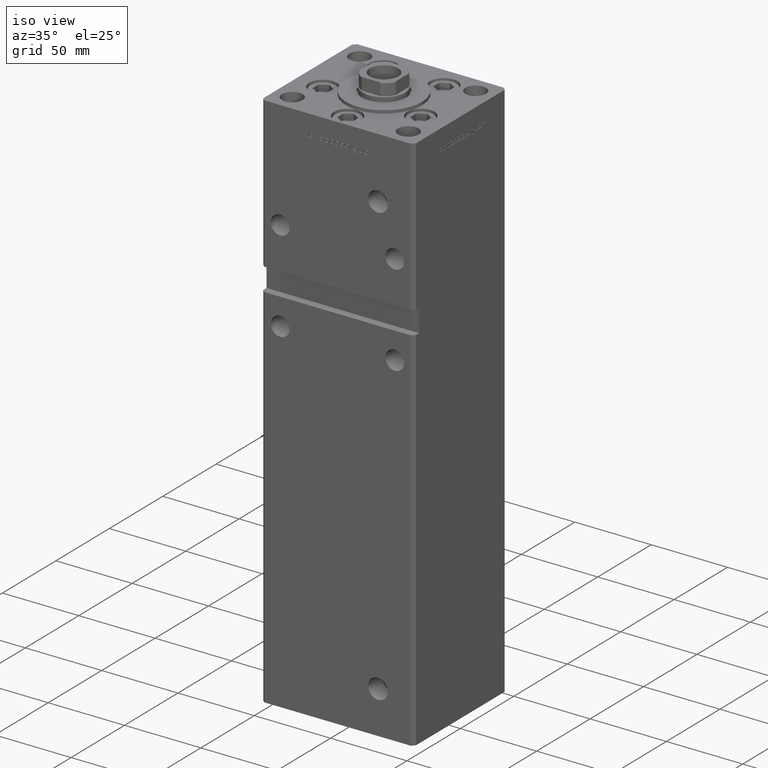
[diagram: clean part render]
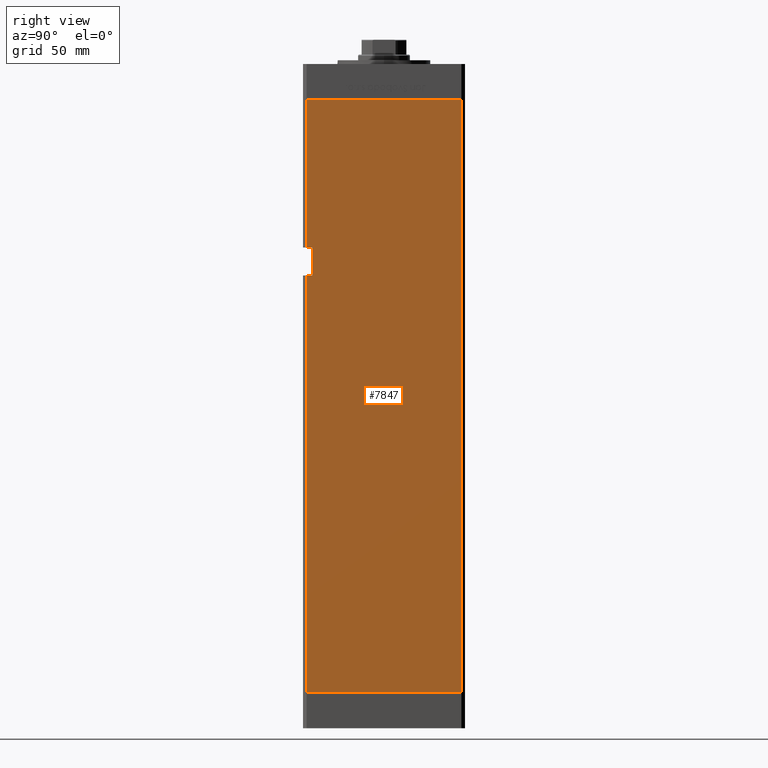
[diagram: tour spotlight — one face highlighted and labeled with its STEP entity id]
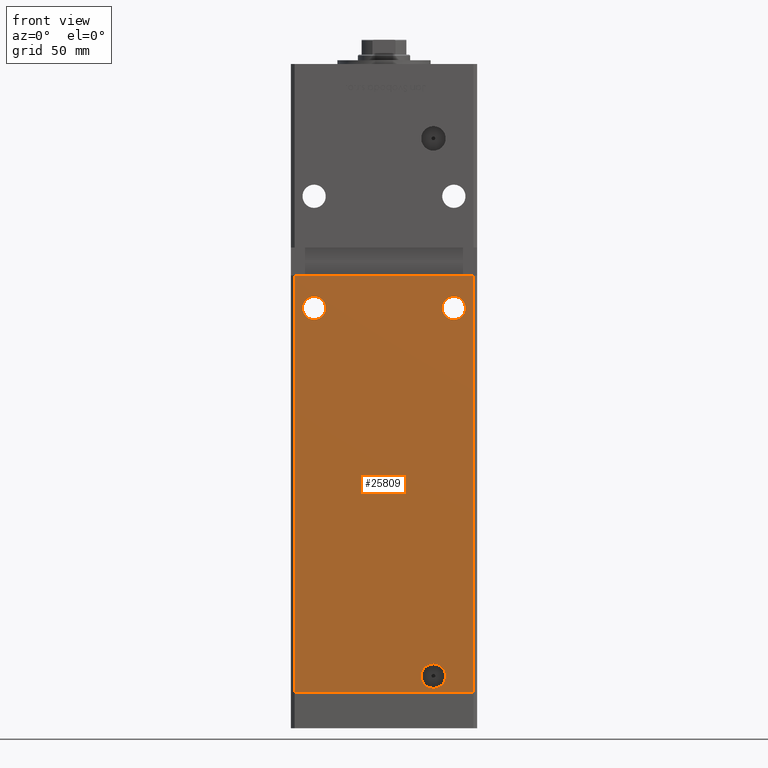
[diagram: tour spotlight — one face highlighted and labeled with its STEP entity id]
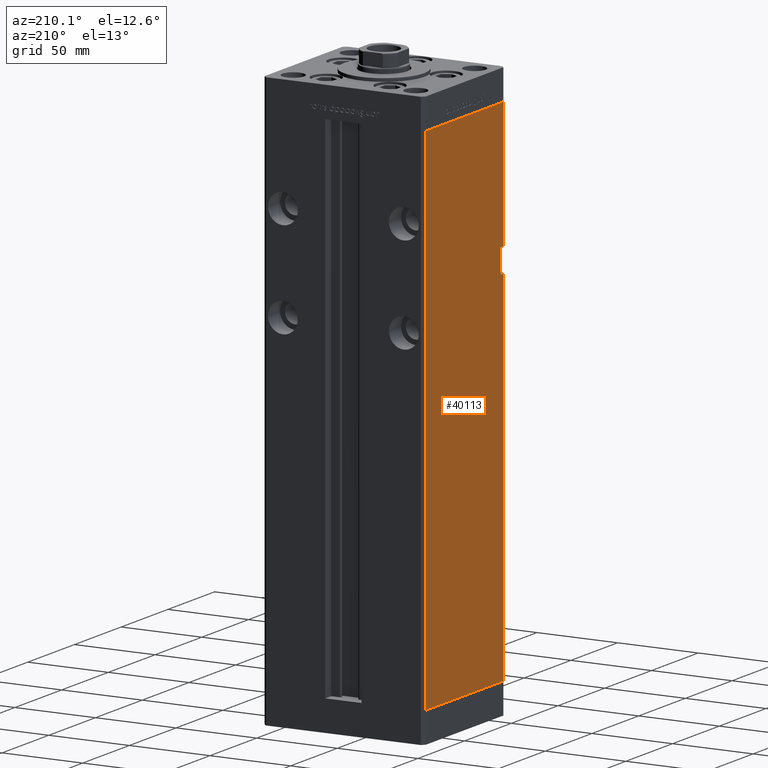
[diagram: tour spotlight — one face highlighted and labeled with its STEP entity id]
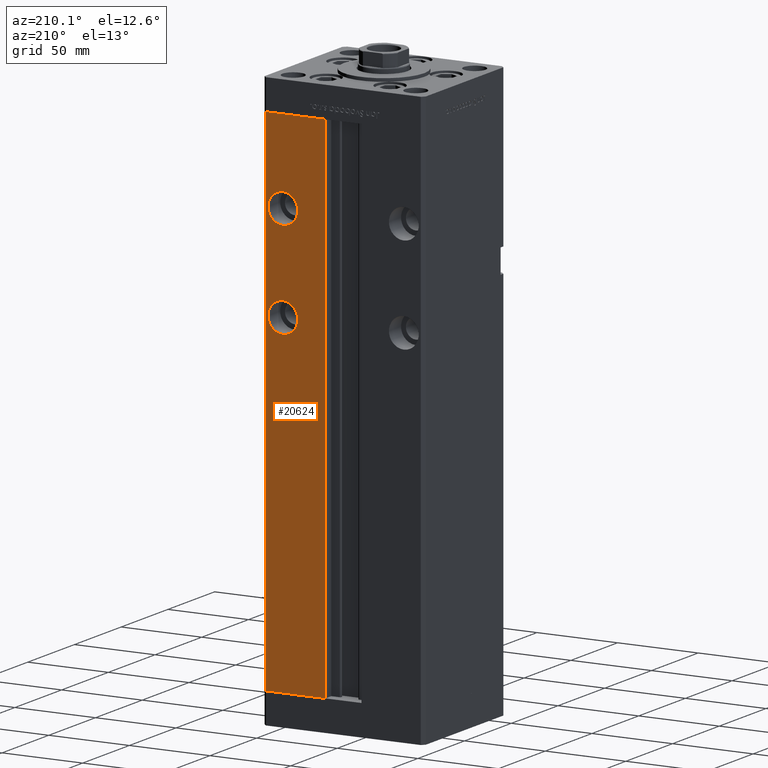
[diagram: tour spotlight — one face highlighted and labeled with its STEP entity id]
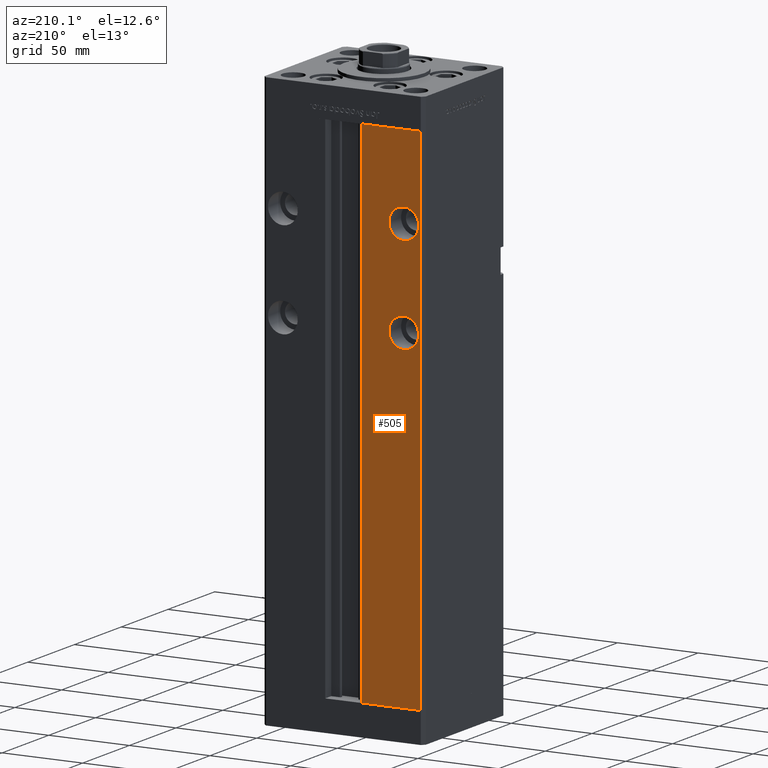
[diagram: tour spotlight — one face highlighted and labeled with its STEP entity id]
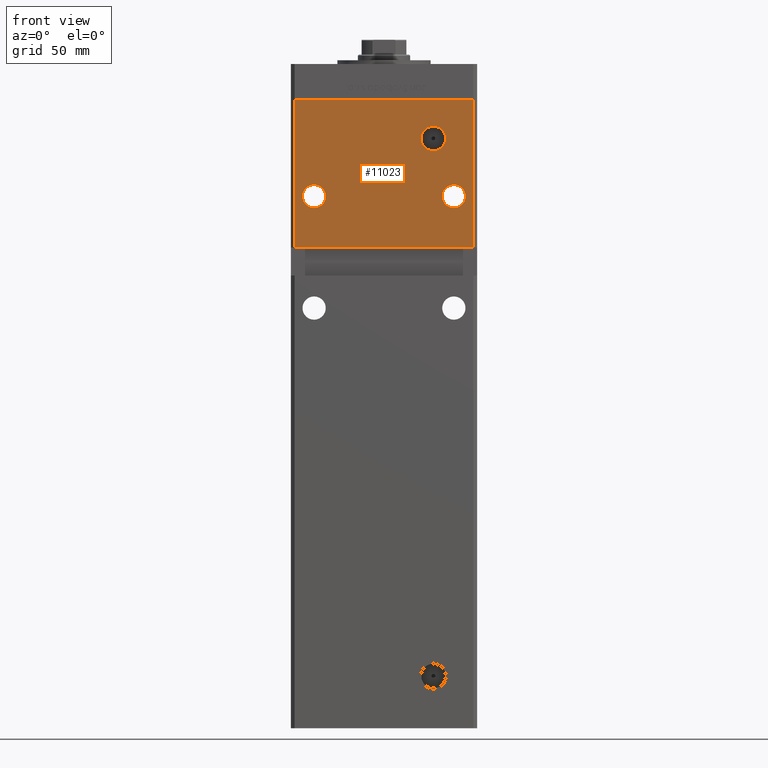
[diagram: tour spotlight — one face highlighted and labeled with its STEP entity id]
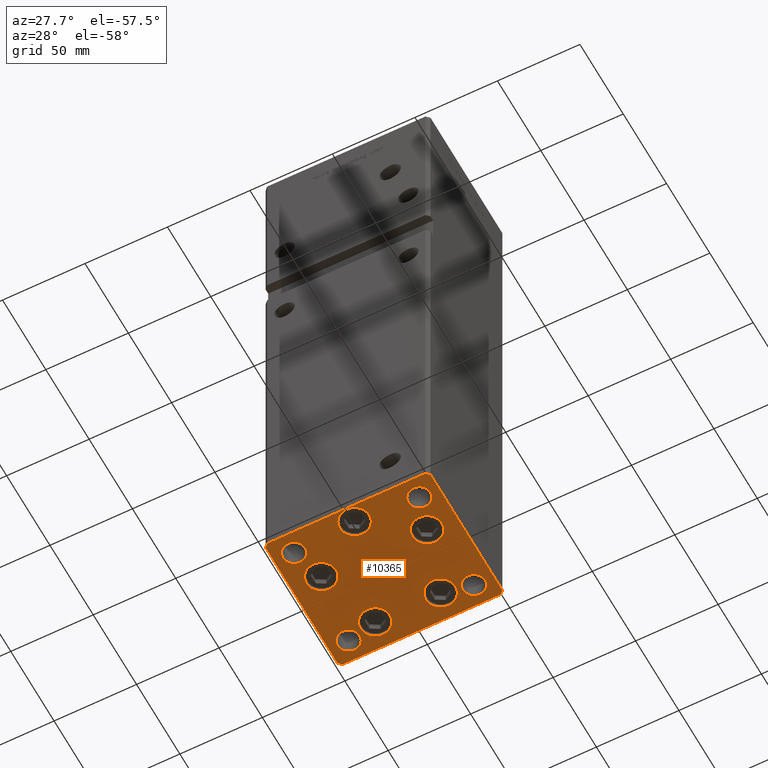
[diagram: tour spotlight — one face highlighted and labeled with its STEP entity id]
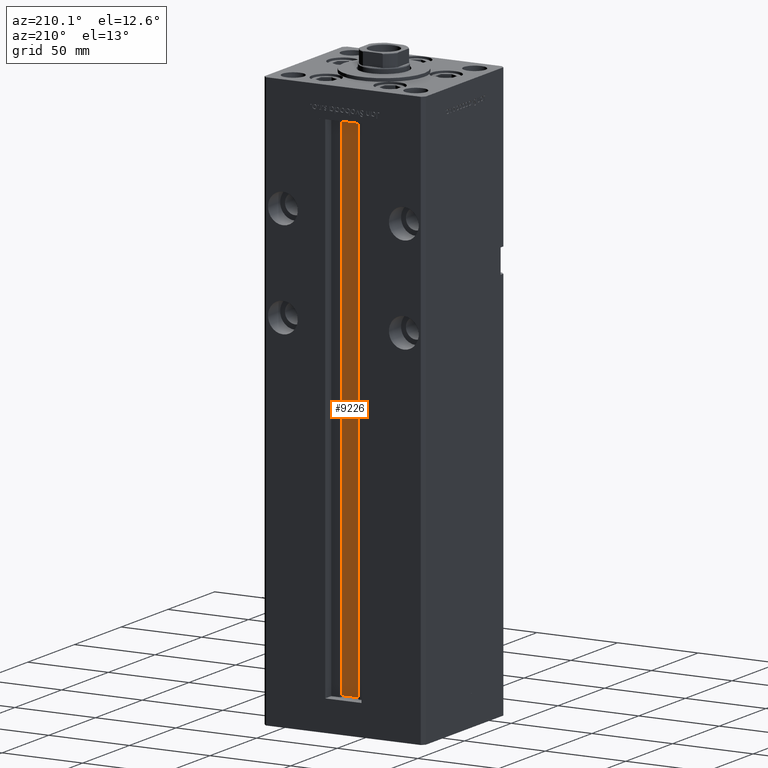
[diagram: tour spotlight — one face highlighted and labeled with its STEP entity id]
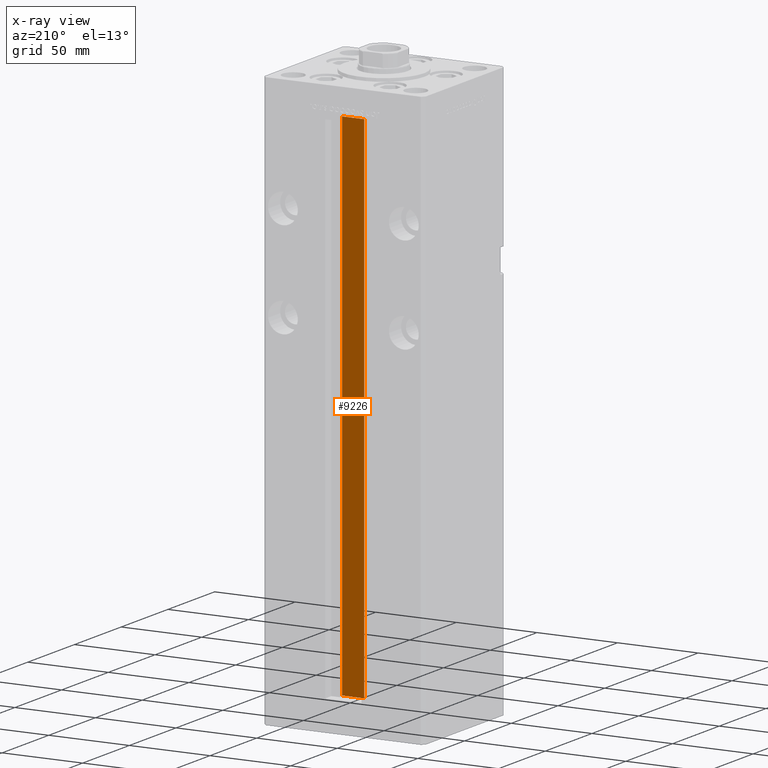
[diagram: x-ray of the same camera — body ghosted, this tour face saturated]
A machine part: a face-by-face anatomy tour. The part has 1214 B-rep faces; the first image is the clean iso view, then the 8 largest visible faces are spotlighted one at a time (largest first), each with its STEP entity span.

Face 1 — right view, entity #7847. In plain terms, the highlighted planar face has unit normal (1, -0, 0).
Definition (entity closure, byte-faithful):
#1068 = DIRECTION ( 'NONE',  ( -0.000000000000000000, -0.000000000000000000, -1.000000000000000000 ) ) ;
#1082 = CARTESIAN_POINT ( 'NONE',  ( 49.99999999999998579, -41.49999999999999289, 318.5000000000000000 ) ) ;
#1590 = EDGE_CURVE ( 'NONE', #6040, #40397, #5350, .T. ) ;
#1661 = CARTESIAN_POINT ( 'NONE',  ( 50.00000000000001421, 41.49999999999999289, 318.5000000000000000 ) ) ;
#1875 = DIRECTION ( 'NONE',  ( -0.000000000000000000, -1.000000000000000000, -0.000000000000000000 ) ) ;
#1894 = EDGE_CURVE ( 'NONE', #51566, #6040, #41063, .T. ) ;
#3789 = VERTEX_POINT ( 'NONE', #40894 ) ;
#3816 = DIRECTION ( 'NONE',  ( -3.344045254895050973E-16, -1.000000000000000000, 0.000000000000000000 ) ) ;
#4242 = CARTESIAN_POINT ( 'NONE',  ( 50.00000000000001421, 41.49999999999999289, 318.5000000000000000 ) ) ;
#4380 = ORIENTED_EDGE ( 'NONE', *, *, #1894, .F. ) ;
#5350 = LINE ( 'NONE', #45948, #44246 ) ;
#6040 = VERTEX_POINT ( 'NONE', #48403 ) ;
#6086 = VERTEX_POINT ( 'NONE', #1082 ) ;
#7806 = VECTOR ( 'NONE', #9873, 1000.000000000000000 ) ;
#7847 = ADVANCED_FACE ( 'NONE', ( #51345 ), #18829, .T. ) ;
#9088 = DIRECTION ( 'NONE',  ( 4.625929269271481969E-16, -0.000000000000000000, 1.000000000000000000 ) ) ;
#9316 = DIRECTION ( 'NONE',  ( -0.000000000000000000, -0.000000000000000000, -1.000000000000000000 ) ) ;
#9324 = ORIENTED_EDGE ( 'NONE', *, *, #1590, .F. ) ;
#9729 = EDGE_LOOP ( 'NONE', ( #14822, #44985, #9324, #4380, #37429, #19360, #47001, #51193 ) ) ;
#9873 = DIRECTION ( 'NONE',  ( -3.344045254895050973E-16, -1.000000000000000000, 0.000000000000000000 ) ) ;
#10387 = EDGE_CURVE ( 'NONE', #6086, #48757, #17926, .T. ) ;
#12081 = LINE ( 'NONE', #16384, #27840 ) ;
#14822 = ORIENTED_EDGE ( 'NONE', *, *, #43643, .T. ) ;
#16384 = CARTESIAN_POINT ( 'NONE',  ( 50.00000000000000000, -38.50000000000000000, 239.0000000000000284 ) ) ;
#16920 = CARTESIAN_POINT ( 'NONE',  ( 50.00000000000001421, 41.49999999999999289, 318.5000000000000000 ) ) ;
#17203 = EDGE_CURVE ( 'NONE', #43308, #3789, #12081, .T. ) ;
#17926 = LINE ( 'NONE', #26786, #28098 ) ;
#18829 = PLANE ( 'NONE',  #27124 ) ;
#19360 = ORIENTED_EDGE ( 'NONE', *, *, #10387, .T. ) ;
#20731 = VERTEX_POINT ( 'NONE', #34177 ) ;
#22318 = VECTOR ( 'NONE', #1068, 1000.000000000000000 ) ;
#22602 = CARTESIAN_POINT ( 'NONE',  ( 50.00000000000001421, 41.49999999999999289, 318.5000000000000000 ) ) ;
#22763 = DIRECTION ( 'NONE',  ( -0.000000000000000000, -0.000000000000000000, -1.000000000000000000 ) ) ;
#25698 = VECTOR ( 'NONE', #38502, 1000.000000000000000 ) ;
#26096 = LINE ( 'NONE', #42218, #32706 ) ;
#26140 = CARTESIAN_POINT ( 'NONE',  ( 49.99999999999998579, -38.49999999999999289, 224.0000000000000000 ) ) ;
#26786 = CARTESIAN_POINT ( 'NONE',  ( 49.99999999999998579, -41.49999999999999289, 318.5000000000000000 ) ) ;
#27124 = AXIS2_PLACEMENT_3D ( 'NONE', #22602, #47848, #51858 ) ;
#27840 = VECTOR ( 'NONE', #9088, 1000.000000000000000 ) ;
#28098 = VECTOR ( 'NONE', #22763, 1000.000000000000000 ) ;
#32396 = CARTESIAN_POINT ( 'NONE',  ( 49.99999999999998579, -41.49999999999999289, 0.000000000000000000 ) ) ;
#32706 = VECTOR ( 'NONE', #1875, 1000.000000000000000 ) ;
#34177 = CARTESIAN_POINT ( 'NONE',  ( 49.99999999999999289, -41.49999999999999289, 224.0000000000000000 ) ) ;
#36500 = VECTOR ( 'NONE', #9316, 1000.000000000000000 ) ;
#37429 = ORIENTED_EDGE ( 'NONE', *, *, #43909, .T. ) ;
#38367 = EDGE_CURVE ( 'NONE', #3789, #48757, #46059, .T. ) ;
#38502 = DIRECTION ( 'NONE',  ( -0.000000000000000000, -1.000000000000000000, -0.000000000000000000 ) ) ;
#40006 = CARTESIAN_POINT ( 'NONE',  ( 50.00000000000000000, -41.49999999999999289, 239.0000000000000284 ) ) ;
#40397 = VERTEX_POINT ( 'NONE', #32396 ) ;
#40894 = CARTESIAN_POINT ( 'NONE',  ( 50.00000000000000000, -38.50000000000000000, 239.0000000000000284 ) ) ;
#41063 = LINE ( 'NONE', #4242, #36500 ) ;
#41561 = EDGE_CURVE ( 'NONE', #20731, #40397, #45707, .T. ) ;
#42218 = CARTESIAN_POINT ( 'NONE',  ( 49.99999999999999289, -38.50000000000000000, 224.0000000000000000 ) ) ;
#43308 = VERTEX_POINT ( 'NONE', #26140 ) ;
#43643 = EDGE_CURVE ( 'NONE', #43308, #20731, #26096, .T. ) ;
#43909 = EDGE_CURVE ( 'NONE', #51566, #6086, #46201, .T. ) ;
#44246 = VECTOR ( 'NONE', #3816, 1000.000000000000000 ) ;
#44985 = ORIENTED_EDGE ( 'NONE', *, *, #41561, .T. ) ;
#45707 = LINE ( 'NONE', #45975, #22318 ) ;
#45948 = CARTESIAN_POINT ( 'NONE',  ( 50.00000000000001421, 41.49999999999999289, 0.000000000000000000 ) ) ;
#45975 = CARTESIAN_POINT ( 'NONE',  ( 49.99999999999998579, -41.49999999999999289, 318.5000000000000000 ) ) ;
#46059 = LINE ( 'NONE', #50346, #25698 ) ;
#46201 = LINE ( 'NONE', #16920, #7806 ) ;
#47001 = ORIENTED_EDGE ( 'NONE', *, *, #38367, .F. ) ;
#47848 = DIRECTION ( 'NONE',  ( 1.000000000000000000, -3.344045254895050480E-16, 0.000000000000000000 ) ) ;
#48403 = CARTESIAN_POINT ( 'NONE',  ( 50.00000000000001421, 41.49999999999999289, 0.000000000000000000 ) ) ;
#48757 = VERTEX_POINT ( 'NONE', #40006 ) ;
#50346 = CARTESIAN_POINT ( 'NONE',  ( 50.00000000000000000, -38.50000000000000000, 239.0000000000000284 ) ) ;
#51193 = ORIENTED_EDGE ( 'NONE', *, *, #17203, .F. ) ;
#51345 = FACE_OUTER_BOUND ( 'NONE', #9729, .T. ) ;
#51566 = VERTEX_POINT ( 'NONE', #1661 ) ;
#51858 = DIRECTION ( 'NONE',  ( 3.344045254895050480E-16, 1.000000000000000000, 0.000000000000000000 ) ) ;

Face 2 — front view, entity #25809. In plain terms, the highlighted planar face has unit normal (0, 1, 0).
Definition (entity closure, byte-faithful):
#328 = CARTESIAN_POINT ( 'NONE',  ( 47.99999999999998579, -43.50000000000000000, 318.5000000000000000 ) ) ;
#525 = CARTESIAN_POINT ( 'NONE',  ( -47.99999999999998579, -43.50000000000000000, 0.000000000000000000 ) ) ;
#1277 = FACE_BOUND ( 'NONE', #47668, .T. ) ;
#2110 = CIRCLE ( 'NONE', #43325, 6.579999999999994742 ) ;
#2170 = AXIS2_PLACEMENT_3D ( 'NONE', #16187, #20754, #8639 ) ;
#3172 = CARTESIAN_POINT ( 'NONE',  ( -47.99999999999998579, -43.50000000000000000, 0.000000000000000000 ) ) ;
#3390 = VERTEX_POINT ( 'NONE', #26542 ) ;
#3666 = CARTESIAN_POINT ( 'NONE',  ( -37.50000000000000000, -43.50000000000000000, 212.7500000000000284 ) ) ;
#3706 = CIRCLE ( 'NONE', #20872, 6.250000000000005329 ) ;
#3930 = VERTEX_POINT ( 'NONE', #49762 ) ;
#3958 = CARTESIAN_POINT ( 'NONE',  ( -37.50000000000000000, -43.50000000000000000, 200.2500000000000000 ) ) ;
#4793 = DIRECTION ( 'NONE',  ( 0.000000000000000000, 1.000000000000000000, 0.000000000000000000 ) ) ;
#5179 = VERTEX_POINT ( 'NONE', #525 ) ;
#5728 = CARTESIAN_POINT ( 'NONE',  ( -47.99999999999998579, -43.50000000000000000, 318.5000000000000000 ) ) ;
#5830 = CARTESIAN_POINT ( 'NONE',  ( 26.49999999999998934, -43.50000000000000000, 2.420000000000013252 ) ) ;
#6193 = CARTESIAN_POINT ( 'NONE',  ( 47.99999999999998579, -43.50000000000000000, 0.000000000000000000 ) ) ;
#6821 = EDGE_CURVE ( 'NONE', #44550, #28061, #25373, .T. ) ;
#7281 = VECTOR ( 'NONE', #33125, 1000.000000000000000 ) ;
#7624 = CARTESIAN_POINT ( 'NONE',  ( 37.50000000000000000, -43.50000000000000000, 200.2500000000000000 ) ) ;
#8250 = DIRECTION ( 'NONE',  ( 0.000000000000000000, -1.000000000000000000, 0.000000000000000000 ) ) ;
#8312 = CARTESIAN_POINT ( 'NONE',  ( -47.99999999999998579, -43.50000000000000000, 318.5000000000000000 ) ) ;
#8639 = DIRECTION ( 'NONE',  ( 0.000000000000000000, 0.000000000000000000, 1.000000000000000000 ) ) ;
#8700 = VERTEX_POINT ( 'NONE', #12838 ) ;
#9078 = AXIS2_PLACEMENT_3D ( 'NONE', #38518, #17831, #38773 ) ;
#9174 = VECTOR ( 'NONE', #15549, 1000.000000000000000 ) ;
#9660 = ORIENTED_EDGE ( 'NONE', *, *, #46274, .T. ) ;
#10222 = EDGE_CURVE ( 'NONE', #5179, #18518, #52900, .T. ) ;
#10781 = CIRCLE ( 'NONE', #9078, 6.250000000000005329 ) ;
#12022 = EDGE_CURVE ( 'NONE', #3930, #3390, #25546, .T. ) ;
#12838 = CARTESIAN_POINT ( 'NONE',  ( 26.49999999999998934, -43.50000000000000000, 15.58000000000000362 ) ) ;
#13333 = VERTEX_POINT ( 'NONE', #5830 ) ;
#14141 = DIRECTION ( 'NONE',  ( 0.000000000000000000, 0.000000000000000000, 1.000000000000000000 ) ) ;
#15549 = DIRECTION ( 'NONE',  ( 1.000000000000000000, 0.000000000000000000, 0.000000000000000000 ) ) ;
#15981 = DIRECTION ( 'NONE',  ( 0.000000000000000000, -1.000000000000000000, 0.000000000000000000 ) ) ;
#16187 = CARTESIAN_POINT ( 'NONE',  ( 37.50000000000000000, -43.50000000000000000, 206.5000000000000284 ) ) ;
#16770 = DIRECTION ( 'NONE',  ( 0.000000000000000000, 0.000000000000000000, -1.000000000000000000 ) ) ;
#17253 = DIRECTION ( 'NONE',  ( 0.000000000000000000, 1.000000000000000000, 0.000000000000000000 ) ) ;
#17605 = ORIENTED_EDGE ( 'NONE', *, *, #6821, .T. ) ;
#17831 = DIRECTION ( 'NONE',  ( 0.000000000000000000, 1.000000000000000000, 0.000000000000000000 ) ) ;
#17853 = EDGE_CURVE ( 'NONE', #13333, #8700, #40768, .T. ) ;
#18006 = VECTOR ( 'NONE', #25649, 1000.000000000000000 ) ;
#18518 = VERTEX_POINT ( 'NONE', #6193 ) ;
#19236 = DIRECTION ( 'NONE',  ( 0.000000000000000000, 1.000000000000000000, 0.000000000000000000 ) ) ;
#20559 = EDGE_CURVE ( 'NONE', #28061, #44550, #10781, .T. ) ;
#20754 = DIRECTION ( 'NONE',  ( 0.000000000000000000, 1.000000000000000000, 0.000000000000000000 ) ) ;
#20872 = AXIS2_PLACEMENT_3D ( 'NONE', #31596, #19236, #14141 ) ;
#22415 = EDGE_CURVE ( 'NONE', #8700, #13333, #2110, .T. ) ;
#22783 = ORIENTED_EDGE ( 'NONE', *, *, #20559, .T. ) ;
#22862 = AXIS2_PLACEMENT_3D ( 'NONE', #8312, #4793, #33299 ) ;
#23999 = CIRCLE ( 'NONE', #33436, 6.250000000000005329 ) ;
#25238 = PLANE ( 'NONE',  #22862 ) ;
#25373 = CIRCLE ( 'NONE', #2170, 6.250000000000005329 ) ;
#25546 = LINE ( 'NONE', #26053, #52979 ) ;
#25649 = DIRECTION ( 'NONE',  ( -0.000000000000000000, -0.000000000000000000, -1.000000000000000000 ) ) ;
#25809 = ADVANCED_FACE ( 'NONE', ( #38108, #49425, #1277, #45134 ), #25238, .F. ) ;
#26053 = CARTESIAN_POINT ( 'NONE',  ( -49.99999999999998579, -43.50000000000000000, 224.0000000000000000 ) ) ;
#26151 = AXIS2_PLACEMENT_3D ( 'NONE', #40425, #15981, #16770 ) ;
#26542 = CARTESIAN_POINT ( 'NONE',  ( 47.99999999999998579, -43.50000000000000000, 224.0000000000000000 ) ) ;
#28061 = VERTEX_POINT ( 'NONE', #7624 ) ;
#29430 = ORIENTED_EDGE ( 'NONE', *, *, #12022, .F. ) ;
#29570 = EDGE_LOOP ( 'NONE', ( #37961, #29430, #48755, #45508 ) ) ;
#30822 = VERTEX_POINT ( 'NONE', #3958 ) ;
#31212 = EDGE_LOOP ( 'NONE', ( #52945, #9660 ) ) ;
#31596 = CARTESIAN_POINT ( 'NONE',  ( -37.50000000000000000, -43.50000000000000000, 206.5000000000000284 ) ) ;
#32164 = DIRECTION ( 'NONE',  ( 0.000000000000000000, 0.000000000000000000, -1.000000000000000000 ) ) ;
#33125 = DIRECTION ( 'NONE',  ( -0.000000000000000000, -0.000000000000000000, -1.000000000000000000 ) ) ;
#33299 = DIRECTION ( 'NONE',  ( 0.000000000000000000, -0.000000000000000000, 1.000000000000000000 ) ) ;
#33436 = AXIS2_PLACEMENT_3D ( 'NONE', #37674, #17253, #33638 ) ;
#33638 = DIRECTION ( 'NONE',  ( 0.000000000000000000, 0.000000000000000000, 1.000000000000000000 ) ) ;
#34081 = VERTEX_POINT ( 'NONE', #3666 ) ;
#36360 = EDGE_CURVE ( 'NONE', #3930, #5179, #50082, .T. ) ;
#37148 = LINE ( 'NONE', #328, #7281 ) ;
#37674 = CARTESIAN_POINT ( 'NONE',  ( -37.50000000000000000, -43.50000000000000000, 206.5000000000000284 ) ) ;
#37961 = ORIENTED_EDGE ( 'NONE', *, *, #49863, .F. ) ;
#38108 = FACE_BOUND ( 'NONE', #31212, .T. ) ;
#38518 = CARTESIAN_POINT ( 'NONE',  ( 37.50000000000000000, -43.50000000000000000, 206.5000000000000284 ) ) ;
#38773 = DIRECTION ( 'NONE',  ( 0.000000000000000000, 0.000000000000000000, 1.000000000000000000 ) ) ;
#39665 = EDGE_CURVE ( 'NONE', #34081, #30822, #23999, .T. ) ;
#40207 = ORIENTED_EDGE ( 'NONE', *, *, #22415, .F. ) ;
#40236 = ORIENTED_EDGE ( 'NONE', *, *, #17853, .F. ) ;
#40425 = CARTESIAN_POINT ( 'NONE',  ( 26.49999999999998934, -43.50000000000000000, 9.000000000000007105 ) ) ;
#40768 = CIRCLE ( 'NONE', #26151, 6.579999999999994742 ) ;
#41927 = DIRECTION ( 'NONE',  ( 1.000000000000000000, 0.000000000000000000, 0.000000000000000000 ) ) ;
#42285 = EDGE_LOOP ( 'NONE', ( #17605, #22783 ) ) ;
#43325 = AXIS2_PLACEMENT_3D ( 'NONE', #49636, #8250, #32164 ) ;
#44550 = VERTEX_POINT ( 'NONE', #46787 ) ;
#45134 = FACE_OUTER_BOUND ( 'NONE', #29570, .T. ) ;
#45508 = ORIENTED_EDGE ( 'NONE', *, *, #10222, .T. ) ;
#46274 = EDGE_CURVE ( 'NONE', #30822, #34081, #3706, .T. ) ;
#46787 = CARTESIAN_POINT ( 'NONE',  ( 37.50000000000000000, -43.50000000000000000, 212.7500000000000284 ) ) ;
#47668 = EDGE_LOOP ( 'NONE', ( #40236, #40207 ) ) ;
#48755 = ORIENTED_EDGE ( 'NONE', *, *, #36360, .T. ) ;
#49425 = FACE_BOUND ( 'NONE', #42285, .T. ) ;
#49636 = CARTESIAN_POINT ( 'NONE',  ( 26.49999999999998934, -43.50000000000000000, 9.000000000000007105 ) ) ;
#49762 = CARTESIAN_POINT ( 'NONE',  ( -47.99999999999998579, -43.50000000000000000, 224.0000000000000000 ) ) ;
#49863 = EDGE_CURVE ( 'NONE', #3390, #18518, #37148, .T. ) ;
#50082 = LINE ( 'NONE', #5728, #18006 ) ;
#52900 = LINE ( 'NONE', #3172, #9174 ) ;
#52945 = ORIENTED_EDGE ( 'NONE', *, *, #39665, .T. ) ;
#52979 = VECTOR ( 'NONE', #41927, 1000.000000000000000 ) ;

Face 3 — auxiliary view, entity #40113. In plain terms, the highlighted planar face has unit normal (1, 0, 0).
Definition (entity closure, byte-faithful):
#692 = VECTOR ( 'NONE', #41585, 1000.000000000000000 ) ;
#1455 = CARTESIAN_POINT ( 'NONE',  ( -49.99999999999998579, -41.49999999999999289, 318.5000000000000000 ) ) ;
#2539 = DIRECTION ( 'NONE',  ( 3.344045254895050973E-16, -1.000000000000000000, 0.000000000000000000 ) ) ;
#3418 = VECTOR ( 'NONE', #40793, 1000.000000000000000 ) ;
#4364 = VERTEX_POINT ( 'NONE', #14186 ) ;
#5731 = CARTESIAN_POINT ( 'NONE',  ( -49.99999999999998579, -38.50000000000000000, 239.0000000000000284 ) ) ;
#6386 = VECTOR ( 'NONE', #2539, 1000.000000000000000 ) ;
#7054 = CARTESIAN_POINT ( 'NONE',  ( -50.00000000000001421, 41.49999999999999289, 318.5000000000000000 ) ) ;
#7535 = EDGE_CURVE ( 'NONE', #49538, #18588, #8775, .T. ) ;
#8775 = LINE ( 'NONE', #5731, #33159 ) ;
#9778 = DIRECTION ( 'NONE',  ( -0.000000000000000000, -0.000000000000000000, -1.000000000000000000 ) ) ;
#10986 = VECTOR ( 'NONE', #9778, 1000.000000000000000 ) ;
#11649 = CARTESIAN_POINT ( 'NONE',  ( -50.00000000000001421, 41.49999999999999289, 0.000000000000000000 ) ) ;
#11798 = EDGE_LOOP ( 'NONE', ( #44445, #38264, #24631, #27118, #22365, #16330, #44424, #44790 ) ) ;
#11894 = CARTESIAN_POINT ( 'NONE',  ( -49.99999999999998579, -41.49999999999999289, 318.5000000000000000 ) ) ;
#12251 = EDGE_CURVE ( 'NONE', #4364, #51122, #36496, .T. ) ;
#13306 = VECTOR ( 'NONE', #21425, 1000.000000000000000 ) ;
#13496 = EDGE_CURVE ( 'NONE', #19180, #22032, #25682, .T. ) ;
#14186 = CARTESIAN_POINT ( 'NONE',  ( -50.00000000000001421, 41.49999999999999289, 318.5000000000000000 ) ) ;
#14562 = AXIS2_PLACEMENT_3D ( 'NONE', #16341, #24130, #49113 ) ;
#14655 = CARTESIAN_POINT ( 'NONE',  ( -50.00000000000001421, 41.49999999999999289, 0.000000000000000000 ) ) ;
#15788 = FACE_OUTER_BOUND ( 'NONE', #11798, .T. ) ;
#16279 = EDGE_CURVE ( 'NONE', #45656, #45249, #51952, .T. ) ;
#16330 = ORIENTED_EDGE ( 'NONE', *, *, #37110, .F. ) ;
#16341 = CARTESIAN_POINT ( 'NONE',  ( -50.00000000000001421, 41.49999999999999289, 318.5000000000000000 ) ) ;
#17650 = EDGE_CURVE ( 'NONE', #51122, #45249, #35337, .T. ) ;
#18588 = VERTEX_POINT ( 'NONE', #37538 ) ;
#18589 = EDGE_CURVE ( 'NONE', #49538, #22032, #32714, .T. ) ;
#19180 = VERTEX_POINT ( 'NONE', #11894 ) ;
#21425 = DIRECTION ( 'NONE',  ( -0.000000000000000000, -1.000000000000000000, -0.000000000000000000 ) ) ;
#21881 = CARTESIAN_POINT ( 'NONE',  ( -49.99999999999998579, -41.49999999999999289, 0.000000000000000000 ) ) ;
#22032 = VERTEX_POINT ( 'NONE', #46836 ) ;
#22365 = ORIENTED_EDGE ( 'NONE', *, *, #13496, .F. ) ;
#24130 = DIRECTION ( 'NONE',  ( 1.000000000000000000, 3.344045254895050480E-16, -0.000000000000000000 ) ) ;
#24631 = ORIENTED_EDGE ( 'NONE', *, *, #7535, .F. ) ;
#25451 = CARTESIAN_POINT ( 'NONE',  ( -49.99999999999998579, -38.50000000000000000, 239.0000000000000284 ) ) ;
#25682 = LINE ( 'NONE', #1455, #10986 ) ;
#27118 = ORIENTED_EDGE ( 'NONE', *, *, #18589, .T. ) ;
#28429 = PLANE ( 'NONE',  #14562 ) ;
#28697 = CARTESIAN_POINT ( 'NONE',  ( -49.99999999999998579, -41.49999999999999289, 224.0000000000000000 ) ) ;
#29224 = VECTOR ( 'NONE', #35545, 1000.000000000000000 ) ;
#29236 = CARTESIAN_POINT ( 'NONE',  ( -49.99999999999998579, -38.50000000000000000, 224.0000000000000000 ) ) ;
#29678 = CARTESIAN_POINT ( 'NONE',  ( -49.99999999999998579, -38.50000000000000000, 239.0000000000000284 ) ) ;
#31007 = CARTESIAN_POINT ( 'NONE',  ( -49.99999999999998579, -41.49999999999999289, 318.5000000000000000 ) ) ;
#32714 = LINE ( 'NONE', #25451, #13306 ) ;
#33159 = VECTOR ( 'NONE', #34738, 1000.000000000000000 ) ;
#34738 = DIRECTION ( 'NONE',  ( 0.000000000000000000, 0.000000000000000000, -1.000000000000000000 ) ) ;
#35337 = LINE ( 'NONE', #14655, #6386 ) ;
#35545 = DIRECTION ( 'NONE',  ( 3.344045254895050973E-16, -1.000000000000000000, 0.000000000000000000 ) ) ;
#36496 = LINE ( 'NONE', #45374, #692 ) ;
#37034 = LINE ( 'NONE', #29236, #3418 ) ;
#37110 = EDGE_CURVE ( 'NONE', #4364, #19180, #38259, .T. ) ;
#37538 = CARTESIAN_POINT ( 'NONE',  ( -49.99999999999998579, -38.50000000000000000, 224.0000000000000000 ) ) ;
#38259 = LINE ( 'NONE', #7054, #29224 ) ;
#38264 = ORIENTED_EDGE ( 'NONE', *, *, #41157, .F. ) ;
#40113 = ADVANCED_FACE ( 'NONE', ( #15788 ), #28429, .F. ) ;
#40793 = DIRECTION ( 'NONE',  ( -0.000000000000000000, -1.000000000000000000, -0.000000000000000000 ) ) ;
#41157 = EDGE_CURVE ( 'NONE', #18588, #45656, #37034, .T. ) ;
#41585 = DIRECTION ( 'NONE',  ( -0.000000000000000000, -0.000000000000000000, -1.000000000000000000 ) ) ;
#44424 = ORIENTED_EDGE ( 'NONE', *, *, #12251, .T. ) ;
#44445 = ORIENTED_EDGE ( 'NONE', *, *, #16279, .F. ) ;
#44790 = ORIENTED_EDGE ( 'NONE', *, *, #17650, .T. ) ;
#45249 = VERTEX_POINT ( 'NONE', #21881 ) ;
#45374 = CARTESIAN_POINT ( 'NONE',  ( -50.00000000000001421, 41.49999999999999289, 318.5000000000000000 ) ) ;
#45656 = VERTEX_POINT ( 'NONE', #28697 ) ;
#46836 = CARTESIAN_POINT ( 'NONE',  ( -49.99999999999998579, -41.49999999999999289, 239.0000000000000284 ) ) ;
#49113 = DIRECTION ( 'NONE',  ( -3.344045254895050480E-16, 1.000000000000000000, 0.000000000000000000 ) ) ;
#49260 = VECTOR ( 'NONE', #51171, 1000.000000000000000 ) ;
#49538 = VERTEX_POINT ( 'NONE', #29678 ) ;
#51122 = VERTEX_POINT ( 'NONE', #11649 ) ;
#51171 = DIRECTION ( 'NONE',  ( -0.000000000000000000, -0.000000000000000000, -1.000000000000000000 ) ) ;
#51952 = LINE ( 'NONE', #31007, #49260 ) ;

Face 4 — auxiliary view, entity #20624. In plain terms, the highlighted planar face has unit normal (0, -1, 0).
Definition (entity closure, byte-faithful):
#423 = ORIENTED_EDGE ( 'NONE', *, *, #18975, .T. ) ;
#740 = ORIENTED_EDGE ( 'NONE', *, *, #39979, .T. ) ;
#822 = VECTOR ( 'NONE', #46464, 1000.000000000000000 ) ;
#1138 = EDGE_CURVE ( 'NONE', #37318, #42925, #4230, .T. ) ;
#2248 = ORIENTED_EDGE ( 'NONE', *, *, #3467, .T. ) ;
#2771 = ORIENTED_EDGE ( 'NONE', *, *, #39536, .F. ) ;
#3467 = EDGE_CURVE ( 'NONE', #24954, #37318, #44535, .T. ) ;
#4073 = CIRCLE ( 'NONE', #40131, 9.249999999999980460 ) ;
#4230 = LINE ( 'NONE', #37807, #7329 ) ;
#4803 = DIRECTION ( 'NONE',  ( 0.000000000000000000, 1.000000000000000000, -0.000000000000000000 ) ) ;
#5665 = AXIS2_PLACEMENT_3D ( 'NONE', #45414, #4803, #24990 ) ;
#5871 = LINE ( 'NONE', #51004, #822 ) ;
#6258 = FACE_BOUND ( 'NONE', #38432, .T. ) ;
#7329 = VECTOR ( 'NONE', #53141, 1000.000000000000000 ) ;
#7617 = CARTESIAN_POINT ( 'NONE',  ( 37.50000000000000000, 43.50000000000000000, 197.2500000000000000 ) ) ;
#8113 = DIRECTION ( 'NONE',  ( 0.000000000000000000, 0.000000000000000000, 1.000000000000000000 ) ) ;
#8497 = VERTEX_POINT ( 'NONE', #46216 ) ;
#10206 = AXIS2_PLACEMENT_3D ( 'NONE', #34480, #39028, #31974 ) ;
#11433 = EDGE_CURVE ( 'NONE', #51199, #8497, #4073, .T. ) ;
#11998 = ORIENTED_EDGE ( 'NONE', *, *, #1138, .T. ) ;
#14259 = CARTESIAN_POINT ( 'NONE',  ( 37.50000000000000000, 43.50000000000000000, 215.7500000000000284 ) ) ;
#17144 = CIRCLE ( 'NONE', #29136, 9.249999999999980460 ) ;
#18186 = CARTESIAN_POINT ( 'NONE',  ( 48.00000000000000711, 43.50000000000000000, 318.5000000000000000 ) ) ;
#18975 = EDGE_CURVE ( 'NONE', #50268, #24954, #50087, .T. ) ;
#19690 = FACE_BOUND ( 'NONE', #40402, .T. ) ;
#19804 = CARTESIAN_POINT ( 'NONE',  ( 11.24999999999999645, 43.50000000000000000, 0.000000000000000000 ) ) ;
#19917 = EDGE_CURVE ( 'NONE', #38805, #47366, #42486, .T. ) ;
#20624 = ADVANCED_FACE ( 'NONE', ( #19690, #6258, #27226 ), #27484, .F. ) ;
#23198 = CARTESIAN_POINT ( 'NONE',  ( -11.24999999999999645, 43.50000000000000000, 318.5000000000000000 ) ) ;
#23801 = DIRECTION ( 'NONE',  ( 0.000000000000000000, 1.000000000000000000, 0.000000000000000000 ) ) ;
#24954 = VERTEX_POINT ( 'NONE', #51321 ) ;
#24990 = DIRECTION ( 'NONE',  ( 0.000000000000000000, 0.000000000000000000, -1.000000000000000000 ) ) ;
#25406 = AXIS2_PLACEMENT_3D ( 'NONE', #23198, #35019, #36077 ) ;
#27226 = FACE_OUTER_BOUND ( 'NONE', #50795, .T. ) ;
#27484 = PLANE ( 'NONE',  #25406 ) ;
#29111 = CARTESIAN_POINT ( 'NONE',  ( 37.50000000000000000, 43.50000000000000000, 257.2500000000000568 ) ) ;
#29136 = AXIS2_PLACEMENT_3D ( 'NONE', #33107, #45737, #8113 ) ;
#29881 = CARTESIAN_POINT ( 'NONE',  ( 11.24999999999998934, 43.50000000000000000, 318.5000000000000000 ) ) ;
#31974 = DIRECTION ( 'NONE',  ( 0.000000000000000000, 0.000000000000000000, -1.000000000000000000 ) ) ;
#33107 = CARTESIAN_POINT ( 'NONE',  ( 37.50000000000000000, 43.50000000000000000, 266.5000000000000000 ) ) ;
#34228 = DIRECTION ( 'NONE',  ( -1.000000000000000000, 0.000000000000000000, 0.000000000000000000 ) ) ;
#34480 = CARTESIAN_POINT ( 'NONE',  ( 37.50000000000000000, 43.50000000000000000, 206.5000000000000284 ) ) ;
#34503 = EDGE_CURVE ( 'NONE', #47366, #38805, #48869, .T. ) ;
#35019 = DIRECTION ( 'NONE',  ( 0.000000000000000000, -1.000000000000000000, 0.000000000000000000 ) ) ;
#36077 = DIRECTION ( 'NONE',  ( 0.000000000000000000, -0.000000000000000000, -1.000000000000000000 ) ) ;
#36412 = CARTESIAN_POINT ( 'NONE',  ( 37.50000000000000000, 43.50000000000000000, 266.5000000000000000 ) ) ;
#36579 = VECTOR ( 'NONE', #52312, 1000.000000000000000 ) ;
#37318 = VERTEX_POINT ( 'NONE', #29881 ) ;
#37807 = CARTESIAN_POINT ( 'NONE',  ( -11.24999999999999645, 43.50000000000000000, 318.5000000000000000 ) ) ;
#38432 = EDGE_LOOP ( 'NONE', ( #2771, #48372 ) ) ;
#38805 = VERTEX_POINT ( 'NONE', #14259 ) ;
#39028 = DIRECTION ( 'NONE',  ( 0.000000000000000000, 1.000000000000000000, -0.000000000000000000 ) ) ;
#39536 = EDGE_CURVE ( 'NONE', #8497, #51199, #17144, .T. ) ;
#39979 = EDGE_CURVE ( 'NONE', #42925, #50268, #5871, .T. ) ;
#40131 = AXIS2_PLACEMENT_3D ( 'NONE', #36412, #23801, #52538 ) ;
#40402 = EDGE_LOOP ( 'NONE', ( #44801, #49902 ) ) ;
#42486 = CIRCLE ( 'NONE', #5665, 9.250000000000008882 ) ;
#42925 = VERTEX_POINT ( 'NONE', #18186 ) ;
#44535 = LINE ( 'NONE', #19804, #36579 ) ;
#44801 = ORIENTED_EDGE ( 'NONE', *, *, #19917, .F. ) ;
#45123 = VECTOR ( 'NONE', #34228, 1000.000000000000000 ) ;
#45414 = CARTESIAN_POINT ( 'NONE',  ( 37.50000000000000000, 43.50000000000000000, 206.5000000000000284 ) ) ;
#45737 = DIRECTION ( 'NONE',  ( 0.000000000000000000, 1.000000000000000000, 0.000000000000000000 ) ) ;
#46216 = CARTESIAN_POINT ( 'NONE',  ( 37.50000000000000000, 43.50000000000000000, 275.7500000000000000 ) ) ;
#46464 = DIRECTION ( 'NONE',  ( -0.000000000000000000, -0.000000000000000000, -1.000000000000000000 ) ) ;
#47366 = VERTEX_POINT ( 'NONE', #7617 ) ;
#48372 = ORIENTED_EDGE ( 'NONE', *, *, #11433, .F. ) ;
#48869 = CIRCLE ( 'NONE', #10206, 9.250000000000008882 ) ;
#49902 = ORIENTED_EDGE ( 'NONE', *, *, #34503, .F. ) ;
#50087 = LINE ( 'NONE', #50872, #45123 ) ;
#50268 = VERTEX_POINT ( 'NONE', #52017 ) ;
#50795 = EDGE_LOOP ( 'NONE', ( #423, #2248, #11998, #740 ) ) ;
#50872 = CARTESIAN_POINT ( 'NONE',  ( -11.24999999999999645, 43.50000000000000000, 0.000000000000000000 ) ) ;
#51004 = CARTESIAN_POINT ( 'NONE',  ( 48.00000000000000711, 43.50000000000000000, 318.5000000000000000 ) ) ;
#51199 = VERTEX_POINT ( 'NONE', #29111 ) ;
#51321 = CARTESIAN_POINT ( 'NONE',  ( 11.24999999999999645, 43.50000000000000000, 0.000000000000000000 ) ) ;
#52017 = CARTESIAN_POINT ( 'NONE',  ( 48.00000000000000711, 43.50000000000000000, 0.000000000000000000 ) ) ;
#52312 = DIRECTION ( 'NONE',  ( -0.000000000000000000, -0.000000000000000000, 1.000000000000000000 ) ) ;
#52538 = DIRECTION ( 'NONE',  ( 0.000000000000000000, 0.000000000000000000, 1.000000000000000000 ) ) ;
#53141 = DIRECTION ( 'NONE',  ( 1.000000000000000000, 0.000000000000000000, 0.000000000000000000 ) ) ;

Face 5 — auxiliary view, entity #505. In plain terms, the highlighted planar face has unit normal (0, -1, 0).
Definition (entity closure, byte-faithful):
#48 = FACE_BOUND ( 'NONE', #2958, .T. ) ;
#505 = ADVANCED_FACE ( 'NONE', ( #31768, #48, #7581 ), #36326, .F. ) ;
#1791 = ORIENTED_EDGE ( 'NONE', *, *, #3176, .T. ) ;
#1831 = DIRECTION ( 'NONE',  ( 0.000000000000000000, 1.000000000000000000, -0.000000000000000000 ) ) ;
#2958 = EDGE_LOOP ( 'NONE', ( #2999, #43780 ) ) ;
#2999 = ORIENTED_EDGE ( 'NONE', *, *, #19871, .F. ) ;
#3176 = EDGE_CURVE ( 'NONE', #6035, #12394, #48620, .T. ) ;
#3566 = CARTESIAN_POINT ( 'NONE',  ( -48.00000000000000711, 43.50000000000000000, 0.000000000000000000 ) ) ;
#6035 = VERTEX_POINT ( 'NONE', #36594 ) ;
#7017 = DIRECTION ( 'NONE',  ( -0.000000000000000000, -0.000000000000000000, -1.000000000000000000 ) ) ;
#7488 = ORIENTED_EDGE ( 'NONE', *, *, #28468, .F. ) ;
#7581 = FACE_OUTER_BOUND ( 'NONE', #27767, .T. ) ;
#8110 = DIRECTION ( 'NONE',  ( 0.000000000000000000, -1.000000000000000000, 0.000000000000000000 ) ) ;
#8178 = EDGE_LOOP ( 'NONE', ( #7488, #44961 ) ) ;
#8501 = CARTESIAN_POINT ( 'NONE',  ( -37.50000000000000000, 43.50000000000000000, 257.2500000000000568 ) ) ;
#8899 = VERTEX_POINT ( 'NONE', #15402 ) ;
#9123 = DIRECTION ( 'NONE',  ( 0.000000000000000000, 0.000000000000000000, -1.000000000000000000 ) ) ;
#10272 = AXIS2_PLACEMENT_3D ( 'NONE', #34374, #1831, #9123 ) ;
#10751 = AXIS2_PLACEMENT_3D ( 'NONE', #25246, #16395, #41628 ) ;
#11042 = LINE ( 'NONE', #51628, #24677 ) ;
#11645 = CIRCLE ( 'NONE', #27106, 9.250000000000008882 ) ;
#11754 = DIRECTION ( 'NONE',  ( -0.000000000000000000, -0.000000000000000000, 1.000000000000000000 ) ) ;
#11811 = CARTESIAN_POINT ( 'NONE',  ( -11.24999999999999645, 43.50000000000000000, 0.000000000000000000 ) ) ;
#12394 = VERTEX_POINT ( 'NONE', #3566 ) ;
#15402 = CARTESIAN_POINT ( 'NONE',  ( -11.24999999999999645, 43.50000000000000000, 318.5000000000000000 ) ) ;
#15909 = DIRECTION ( 'NONE',  ( 0.000000000000000000, -0.000000000000000000, -1.000000000000000000 ) ) ;
#16111 = VECTOR ( 'NONE', #7017, 1000.000000000000000 ) ;
#16395 = DIRECTION ( 'NONE',  ( 0.000000000000000000, 1.000000000000000000, 0.000000000000000000 ) ) ;
#16510 = DIRECTION ( 'NONE',  ( 0.000000000000000000, 1.000000000000000000, 0.000000000000000000 ) ) ;
#16600 = VERTEX_POINT ( 'NONE', #8501 ) ;
#18855 = DIRECTION ( 'NONE',  ( 1.000000000000000000, 0.000000000000000000, 0.000000000000000000 ) ) ;
#19871 = EDGE_CURVE ( 'NONE', #36794, #27688, #33940, .T. ) ;
#22472 = CARTESIAN_POINT ( 'NONE',  ( -37.50000000000000000, 43.50000000000000000, 215.7500000000000284 ) ) ;
#23165 = LINE ( 'NONE', #39538, #16111 ) ;
#24567 = CARTESIAN_POINT ( 'NONE',  ( -48.00000000000000711, 43.50000000000000000, 318.5000000000000000 ) ) ;
#24677 = VECTOR ( 'NONE', #18855, 1000.000000000000000 ) ;
#24809 = EDGE_CURVE ( 'NONE', #27688, #36794, #11645, .T. ) ;
#25246 = CARTESIAN_POINT ( 'NONE',  ( -37.50000000000000000, 43.50000000000000000, 206.5000000000000284 ) ) ;
#27008 = AXIS2_PLACEMENT_3D ( 'NONE', #48158, #8110, #15909 ) ;
#27106 = AXIS2_PLACEMENT_3D ( 'NONE', #36670, #16510, #52251 ) ;
#27688 = VERTEX_POINT ( 'NONE', #48266 ) ;
#27767 = EDGE_LOOP ( 'NONE', ( #48539, #40613, #1791, #33804 ) ) ;
#28252 = EDGE_CURVE ( 'NONE', #42483, #8899, #11042, .T. ) ;
#28468 = EDGE_CURVE ( 'NONE', #32283, #16600, #41811, .T. ) ;
#28828 = CARTESIAN_POINT ( 'NONE',  ( -37.50000000000000000, 43.50000000000000000, 275.7500000000000000 ) ) ;
#29130 = EDGE_CURVE ( 'NONE', #42483, #12394, #23165, .T. ) ;
#31768 = FACE_BOUND ( 'NONE', #8178, .T. ) ;
#32283 = VERTEX_POINT ( 'NONE', #28828 ) ;
#33804 = ORIENTED_EDGE ( 'NONE', *, *, #29130, .F. ) ;
#33940 = CIRCLE ( 'NONE', #10751, 9.250000000000008882 ) ;
#34241 = VECTOR ( 'NONE', #11754, 1000.000000000000000 ) ;
#34374 = CARTESIAN_POINT ( 'NONE',  ( -37.50000000000000000, 43.50000000000000000, 266.5000000000000000 ) ) ;
#35186 = CARTESIAN_POINT ( 'NONE',  ( -37.50000000000000000, 43.50000000000000000, 266.5000000000000000 ) ) ;
#36326 = PLANE ( 'NONE',  #27008 ) ;
#36594 = CARTESIAN_POINT ( 'NONE',  ( -11.24999999999999645, 43.50000000000000000, 0.000000000000000000 ) ) ;
#36670 = CARTESIAN_POINT ( 'NONE',  ( -37.50000000000000000, 43.50000000000000000, 206.5000000000000284 ) ) ;
#36794 = VERTEX_POINT ( 'NONE', #22472 ) ;
#39182 = EDGE_CURVE ( 'NONE', #6035, #8899, #49363, .T. ) ;
#39215 = DIRECTION ( 'NONE',  ( 0.000000000000000000, 0.000000000000000000, -1.000000000000000000 ) ) ;
#39538 = CARTESIAN_POINT ( 'NONE',  ( -48.00000000000000711, 43.50000000000000000, 318.5000000000000000 ) ) ;
#39743 = DIRECTION ( 'NONE',  ( -1.000000000000000000, 0.000000000000000000, 0.000000000000000000 ) ) ;
#40613 = ORIENTED_EDGE ( 'NONE', *, *, #39182, .F. ) ;
#40817 = EDGE_CURVE ( 'NONE', #16600, #32283, #44649, .T. ) ;
#41628 = DIRECTION ( 'NONE',  ( 0.000000000000000000, 0.000000000000000000, 1.000000000000000000 ) ) ;
#41811 = CIRCLE ( 'NONE', #42643, 9.249999999999980460 ) ;
#42483 = VERTEX_POINT ( 'NONE', #24567 ) ;
#42643 = AXIS2_PLACEMENT_3D ( 'NONE', #35186, #47545, #39215 ) ;
#43780 = ORIENTED_EDGE ( 'NONE', *, *, #24809, .F. ) ;
#43999 = CARTESIAN_POINT ( 'NONE',  ( -11.24999999999999645, 43.50000000000000000, 0.000000000000000000 ) ) ;
#44649 = CIRCLE ( 'NONE', #10272, 9.249999999999980460 ) ;
#44961 = ORIENTED_EDGE ( 'NONE', *, *, #40817, .F. ) ;
#47545 = DIRECTION ( 'NONE',  ( 0.000000000000000000, 1.000000000000000000, -0.000000000000000000 ) ) ;
#48158 = CARTESIAN_POINT ( 'NONE',  ( -11.24999999999999645, 43.50000000000000000, 318.5000000000000000 ) ) ;
#48266 = CARTESIAN_POINT ( 'NONE',  ( -37.50000000000000000, 43.50000000000000000, 197.2500000000000000 ) ) ;
#48539 = ORIENTED_EDGE ( 'NONE', *, *, #28252, .T. ) ;
#48620 = LINE ( 'NONE', #11811, #51138 ) ;
#49363 = LINE ( 'NONE', #43999, #34241 ) ;
#51138 = VECTOR ( 'NONE', #39743, 1000.000000000000000 ) ;
#51628 = CARTESIAN_POINT ( 'NONE',  ( -11.24999999999999645, 43.50000000000000000, 318.5000000000000000 ) ) ;
#52251 = DIRECTION ( 'NONE',  ( 0.000000000000000000, 0.000000000000000000, 1.000000000000000000 ) ) ;

Face 6 — front view, entity #11023. In plain terms, the highlighted planar face has unit normal (0, 1, 0).
Definition (entity closure, byte-faithful):
#22 = CIRCLE ( 'NONE', #20642, 6.249999999999977796 ) ;
#264 = CARTESIAN_POINT ( 'NONE',  ( -47.99999999999998579, -43.50000000000000000, 239.0000000000000284 ) ) ;
#407 = ORIENTED_EDGE ( 'NONE', *, *, #2464, .T. ) ;
#1395 = EDGE_CURVE ( 'NONE', #23373, #20922, #35353, .T. ) ;
#2464 = EDGE_CURVE ( 'NONE', #37416, #23457, #28829, .T. ) ;
#2540 = EDGE_LOOP ( 'NONE', ( #42387, #407 ) ) ;
#2901 = DIRECTION ( 'NONE',  ( 0.000000000000000000, 0.000000000000000000, 1.000000000000000000 ) ) ;
#3191 = EDGE_CURVE ( 'NONE', #39105, #48687, #23683, .T. ) ;
#4046 = VERTEX_POINT ( 'NONE', #51334 ) ;
#4311 = VERTEX_POINT ( 'NONE', #6652 ) ;
#4681 = DIRECTION ( 'NONE',  ( 1.000000000000000000, 0.000000000000000000, 0.000000000000000000 ) ) ;
#5351 = VERTEX_POINT ( 'NONE', #23329 ) ;
#5796 = EDGE_CURVE ( 'NONE', #23373, #4046, #20311, .T. ) ;
#6652 = CARTESIAN_POINT ( 'NONE',  ( -37.50000000000000000, -43.50000000000000000, 260.2500000000000568 ) ) ;
#7772 = DIRECTION ( 'NONE',  ( 0.000000000000000000, 0.000000000000000000, -1.000000000000000000 ) ) ;
#10169 = ORIENTED_EDGE ( 'NONE', *, *, #23289, .F. ) ;
#10583 = VERTEX_POINT ( 'NONE', #22175 ) ;
#10777 = ORIENTED_EDGE ( 'NONE', *, *, #26217, .F. ) ;
#11015 = CARTESIAN_POINT ( 'NONE',  ( -47.99999999999998579, -43.50000000000000000, 318.5000000000000000 ) ) ;
#11023 = ADVANCED_FACE ( 'NONE', ( #38742, #43043, #34456, #38219 ), #34198, .F. ) ;
#12684 = CARTESIAN_POINT ( 'NONE',  ( 47.99999999999998579, -43.50000000000000000, 318.5000000000000000 ) ) ;
#13519 = AXIS2_PLACEMENT_3D ( 'NONE', #22109, #50591, #51105 ) ;
#14921 = DIRECTION ( 'NONE',  ( -0.000000000000000000, -0.000000000000000000, -1.000000000000000000 ) ) ;
#15018 = VECTOR ( 'NONE', #34957, 1000.000000000000000 ) ;
#16479 = CARTESIAN_POINT ( 'NONE',  ( 37.50000000000000000, -43.50000000000000000, 266.5000000000000000 ) ) ;
#16666 = CARTESIAN_POINT ( 'NONE',  ( 26.49999999999995381, -43.50000000000000000, 297.5000000000000000 ) ) ;
#17894 = EDGE_CURVE ( 'NONE', #4311, #5351, #28724, .T. ) ;
#17925 = ORIENTED_EDGE ( 'NONE', *, *, #5796, .F. ) ;
#19365 = CARTESIAN_POINT ( 'NONE',  ( 37.50000000000000000, -43.50000000000000000, 260.2500000000000568 ) ) ;
#19379 = VECTOR ( 'NONE', #4681, 1000.000000000000000 ) ;
#19941 = LINE ( 'NONE', #12684, #27142 ) ;
#20010 = CARTESIAN_POINT ( 'NONE',  ( -37.50000000000000000, -43.50000000000000000, 266.5000000000000000 ) ) ;
#20311 = LINE ( 'NONE', #41511, #19379 ) ;
#20642 = AXIS2_PLACEMENT_3D ( 'NONE', #34854, #31077, #27049 ) ;
#20922 = VERTEX_POINT ( 'NONE', #264 ) ;
#22109 = CARTESIAN_POINT ( 'NONE',  ( -47.99999999999998579, -43.50000000000000000, 318.5000000000000000 ) ) ;
#22175 = CARTESIAN_POINT ( 'NONE',  ( 47.99999999999995737, -43.50000000000000000, 239.0000000000000284 ) ) ;
#23289 = EDGE_CURVE ( 'NONE', #10583, #20922, #27156, .T. ) ;
#23329 = CARTESIAN_POINT ( 'NONE',  ( -37.50000000000000000, -43.50000000000000000, 272.7500000000000000 ) ) ;
#23373 = VERTEX_POINT ( 'NONE', #11015 ) ;
#23457 = VERTEX_POINT ( 'NONE', #49445 ) ;
#23683 = CIRCLE ( 'NONE', #33960, 6.579999999999975202 ) ;
#23905 = DIRECTION ( 'NONE',  ( -0.000000000000000000, 1.000000000000000000, -0.000000000000000000 ) ) ;
#24456 = EDGE_CURVE ( 'NONE', #48687, #39105, #37391, .T. ) ;
#24517 = ORIENTED_EDGE ( 'NONE', *, *, #3191, .T. ) ;
#26217 = EDGE_CURVE ( 'NONE', #4046, #10583, #19941, .T. ) ;
#26343 = EDGE_LOOP ( 'NONE', ( #50280, #10169, #10777, #17925 ) ) ;
#26601 = CIRCLE ( 'NONE', #46365, 6.249999999999977796 ) ;
#27049 = DIRECTION ( 'NONE',  ( 0.000000000000000000, 0.000000000000000000, 1.000000000000000000 ) ) ;
#27142 = VECTOR ( 'NONE', #32839, 1000.000000000000000 ) ;
#27156 = LINE ( 'NONE', #42479, #15018 ) ;
#27451 = ORIENTED_EDGE ( 'NONE', *, *, #24456, .T. ) ;
#27643 = CARTESIAN_POINT ( 'NONE',  ( -37.50000000000000000, -43.50000000000000000, 266.5000000000000000 ) ) ;
#27656 = CARTESIAN_POINT ( 'NONE',  ( 26.49999999999995381, -43.50000000000000000, 297.5000000000000000 ) ) ;
#28724 = CIRCLE ( 'NONE', #42446, 6.249999999999977796 ) ;
#28829 = CIRCLE ( 'NONE', #39132, 6.249999999999977796 ) ;
#29050 = EDGE_LOOP ( 'NONE', ( #45842, #47679 ) ) ;
#29680 = AXIS2_PLACEMENT_3D ( 'NONE', #16666, #49458, #30868 ) ;
#29853 = EDGE_LOOP ( 'NONE', ( #24517, #27451 ) ) ;
#30868 = DIRECTION ( 'NONE',  ( 0.000000000000000000, 0.000000000000000000, -1.000000000000000000 ) ) ;
#31077 = DIRECTION ( 'NONE',  ( 0.000000000000000000, 1.000000000000000000, 0.000000000000000000 ) ) ;
#32839 = DIRECTION ( 'NONE',  ( -0.000000000000000000, -0.000000000000000000, -1.000000000000000000 ) ) ;
#33952 = DIRECTION ( 'NONE',  ( 0.000000000000000000, 0.000000000000000000, 1.000000000000000000 ) ) ;
#33960 = AXIS2_PLACEMENT_3D ( 'NONE', #27656, #23905, #7772 ) ;
#34198 = PLANE ( 'NONE',  #13519 ) ;
#34456 = FACE_OUTER_BOUND ( 'NONE', #26343, .T. ) ;
#34854 = CARTESIAN_POINT ( 'NONE',  ( 37.50000000000000000, -43.50000000000000000, 266.5000000000000000 ) ) ;
#34957 = DIRECTION ( 'NONE',  ( -1.000000000000000000, -0.000000000000000000, -0.000000000000000000 ) ) ;
#35353 = LINE ( 'NONE', #51729, #39088 ) ;
#35401 = CARTESIAN_POINT ( 'NONE',  ( 26.49999999999995381, -43.50000000000000000, 290.9200000000000159 ) ) ;
#37391 = CIRCLE ( 'NONE', #29680, 6.579999999999975202 ) ;
#37416 = VERTEX_POINT ( 'NONE', #19365 ) ;
#37692 = DIRECTION ( 'NONE',  ( 0.000000000000000000, 0.000000000000000000, 1.000000000000000000 ) ) ;
#38219 = FACE_BOUND ( 'NONE', #29853, .T. ) ;
#38742 = FACE_BOUND ( 'NONE', #2540, .T. ) ;
#39088 = VECTOR ( 'NONE', #14921, 1000.000000000000000 ) ;
#39105 = VERTEX_POINT ( 'NONE', #35401 ) ;
#39132 = AXIS2_PLACEMENT_3D ( 'NONE', #16479, #40930, #37692 ) ;
#39479 = CARTESIAN_POINT ( 'NONE',  ( 26.49999999999995381, -43.50000000000000000, 304.0799999999999841 ) ) ;
#40930 = DIRECTION ( 'NONE',  ( 0.000000000000000000, 1.000000000000000000, 0.000000000000000000 ) ) ;
#41511 = CARTESIAN_POINT ( 'NONE',  ( -47.99999999999998579, -43.50000000000000000, 318.5000000000000000 ) ) ;
#41757 = EDGE_CURVE ( 'NONE', #5351, #4311, #26601, .T. ) ;
#41938 = EDGE_CURVE ( 'NONE', #23457, #37416, #22, .T. ) ;
#42387 = ORIENTED_EDGE ( 'NONE', *, *, #41938, .T. ) ;
#42446 = AXIS2_PLACEMENT_3D ( 'NONE', #20010, #42530, #33952 ) ;
#42479 = CARTESIAN_POINT ( 'NONE',  ( -49.99999999999998579, -43.50000000000000000, 239.0000000000000284 ) ) ;
#42530 = DIRECTION ( 'NONE',  ( 0.000000000000000000, 1.000000000000000000, 0.000000000000000000 ) ) ;
#43043 = FACE_BOUND ( 'NONE', #29050, .T. ) ;
#45842 = ORIENTED_EDGE ( 'NONE', *, *, #41757, .T. ) ;
#46365 = AXIS2_PLACEMENT_3D ( 'NONE', #27643, #52625, #2901 ) ;
#47679 = ORIENTED_EDGE ( 'NONE', *, *, #17894, .T. ) ;
#48687 = VERTEX_POINT ( 'NONE', #39479 ) ;
#49445 = CARTESIAN_POINT ( 'NONE',  ( 37.50000000000000000, -43.50000000000000000, 272.7500000000000000 ) ) ;
#49458 = DIRECTION ( 'NONE',  ( -0.000000000000000000, 1.000000000000000000, -0.000000000000000000 ) ) ;
#50280 = ORIENTED_EDGE ( 'NONE', *, *, #1395, .T. ) ;
#50591 = DIRECTION ( 'NONE',  ( 0.000000000000000000, 1.000000000000000000, 0.000000000000000000 ) ) ;
#51105 = DIRECTION ( 'NONE',  ( 0.000000000000000000, -0.000000000000000000, 1.000000000000000000 ) ) ;
#51334 = CARTESIAN_POINT ( 'NONE',  ( 47.99999999999998579, -43.50000000000000000, 318.5000000000000000 ) ) ;
#51729 = CARTESIAN_POINT ( 'NONE',  ( -47.99999999999998579, -43.50000000000000000, 318.5000000000000000 ) ) ;
#52625 = DIRECTION ( 'NONE',  ( 0.000000000000000000, 1.000000000000000000, 0.000000000000000000 ) ) ;

Face 7 — auxiliary view, entity #10365. In plain terms, the highlighted planar face has unit normal (0, 0, -1).
Definition (entity closure, byte-faithful):
#365 = VECTOR ( 'NONE', #42457, 1000.000000000000114 ) ;
#713 = VERTEX_POINT ( 'NONE', #34672 ) ;
#907 = DIRECTION ( 'NONE',  ( 1.000000000000000000, 0.000000000000000000, 0.000000000000000000 ) ) ;
#1160 = ORIENTED_EDGE ( 'NONE', *, *, #40285, .T. ) ;
#1234 = DIRECTION ( 'NONE',  ( -0.000000000000000000, 0.000000000000000000, 1.000000000000000000 ) ) ;
#1281 = EDGE_CURVE ( 'NONE', #4339, #17602, #9564, .T. ) ;
#1409 = AXIS2_PLACEMENT_3D ( 'NONE', #25652, #18340, #907 ) ;
#2184 = CIRCLE ( 'NONE', #41689, 6.749999999999999112 ) ;
#2340 = AXIS2_PLACEMENT_3D ( 'NONE', #16973, #13197, #33880 ) ;
#2582 = CARTESIAN_POINT ( 'NONE',  ( 0.000000000000000000, 0.000000000000000000, 0.000000000000000000 ) ) ;
#3196 = EDGE_CURVE ( 'NONE', #11624, #7225, #17656, .T. ) ;
#3307 = CARTESIAN_POINT ( 'NONE',  ( -50.00000000000000000, -41.50000000000000000, 0.000000000000000000 ) ) ;
#3348 = DIRECTION ( 'NONE',  ( 0.000000000000000000, -0.000000000000000000, -1.000000000000000000 ) ) ;
#3378 = EDGE_CURVE ( 'NONE', #36064, #29871, #12575, .T. ) ;
#3388 = CARTESIAN_POINT ( 'NONE',  ( 49.99999999999992184, 41.49999999999998579, 0.000000000000000000 ) ) ;
#3428 = ORIENTED_EDGE ( 'NONE', *, *, #1281, .T. ) ;
#3454 = AXIS2_PLACEMENT_3D ( 'NONE', #29638, #17292, #46052 ) ;
#3678 = CARTESIAN_POINT ( 'NONE',  ( 28.82068048781372838, 27.62500000000000000, 0.000000000000000000 ) ) ;
#3712 = VERTEX_POINT ( 'NONE', #38757 ) ;
#3879 = VECTOR ( 'NONE', #25975, 1000.000000000000000 ) ;
#4008 = DIRECTION ( 'NONE',  ( 1.000000000000000000, 0.000000000000000000, 0.000000000000000000 ) ) ;
#4074 = CARTESIAN_POINT ( 'NONE',  ( -8.999999999999996447, -34.00000000000000000, 0.000000000000000000 ) ) ;
#4288 = CARTESIAN_POINT ( 'NONE',  ( 50.00000000000000000, -41.49999999999999289, 0.000000000000000000 ) ) ;
#4339 = VERTEX_POINT ( 'NONE', #34097 ) ;
#4527 = EDGE_CURVE ( 'NONE', #40315, #38932, #10079, .T. ) ;
#4590 = CARTESIAN_POINT ( 'NONE',  ( -41.05550741379015278, -11.33333333333333925, 0.000000000000000000 ) ) ;
#4842 = CIRCLE ( 'NONE', #34838, 8.999999999999998224 ) ;
#5058 = EDGE_CURVE ( 'NONE', #713, #35517, #22922, .T. ) ;
#5309 = FACE_BOUND ( 'NONE', #15497, .T. ) ;
#5397 = EDGE_CURVE ( 'NONE', #35517, #713, #34920, .T. ) ;
#5491 = DIRECTION ( 'NONE',  ( 1.000000000000000000, 0.000000000000000000, 0.000000000000000000 ) ) ;
#5562 = FACE_BOUND ( 'NONE', #47215, .T. ) ;
#5769 = DIRECTION ( 'NONE',  ( -0.7071067811865474617, 0.7071067811865474617, 0.000000000000000000 ) ) ;
#5895 = ORIENTED_EDGE ( 'NONE', *, *, #24196, .T. ) ;
#5924 = AXIS2_PLACEMENT_3D ( 'NONE', #28669, #16576, #7974 ) ;
#6069 = CARTESIAN_POINT ( 'NONE',  ( 47.99999999999990763, 43.50000000000000000, 0.000000000000000000 ) ) ;
#6166 = VERTEX_POINT ( 'NONE', #4590 ) ;
#6358 = EDGE_CURVE ( 'NONE', #17342, #17802, #29654, .T. ) ;
#6380 = CARTESIAN_POINT ( 'NONE',  ( -44.75000000000000000, 31.50000000000000000, 0.000000000000000000 ) ) ;
#6438 = LINE ( 'NONE', #22854, #365 ) ;
#6488 = AXIS2_PLACEMENT_3D ( 'NONE', #42602, #17610, #46382 ) ;
#6525 = AXIS2_PLACEMENT_3D ( 'NONE', #32766, #40818, #4008 ) ;
#6878 = CARTESIAN_POINT ( 'NONE',  ( 32.05550741379015278, -11.33333333333333037, 0.000000000000000000 ) ) ;
#7087 = ORIENTED_EDGE ( 'NONE', *, *, #16899, .T. ) ;
#7225 = VERTEX_POINT ( 'NONE', #6380 ) ;
#7486 = VECTOR ( 'NONE', #5769, 1000.000000000000114 ) ;
#7487 = EDGE_CURVE ( 'NONE', #48387, #14177, #4842, .T. ) ;
#7918 = ORIENTED_EDGE ( 'NONE', *, *, #7487, .T. ) ;
#7974 = DIRECTION ( 'NONE',  ( 1.000000000000000000, 0.000000000000000000, 0.000000000000000000 ) ) ;
#8345 = ORIENTED_EDGE ( 'NONE', *, *, #38316, .T. ) ;
#8666 = DIRECTION ( 'NONE',  ( 0.000000000000000000, -0.000000000000000000, -1.000000000000000000 ) ) ;
#9181 = EDGE_LOOP ( 'NONE', ( #23505, #5895 ) ) ;
#9506 = CARTESIAN_POINT ( 'NONE',  ( -31.25000000000000000, 31.50000000000000000, 0.000000000000000000 ) ) ;
#9564 = LINE ( 'NONE', #9816, #3879 ) ;
#9816 = CARTESIAN_POINT ( 'NONE',  ( -48.00000000000000711, 43.49999999999996447, 0.000000000000000000 ) ) ;
#10079 = LINE ( 'NONE', #26492, #33163 ) ;
#10204 = CIRCLE ( 'NONE', #22240, 8.999999999999998224 ) ;
#10276 = AXIS2_PLACEMENT_3D ( 'NONE', #6878, #23283, #39656 ) ;
#10319 = CARTESIAN_POINT ( 'NONE',  ( 10.82068048781373193, 27.62500000000000000, 0.000000000000000000 ) ) ;
#10365 = ADVANCED_FACE ( 'NONE', ( #25490, #49936, #33801, #5309, #21711, #10635, #50966, #5562, #46683, #14698 ), #31073, .T. ) ;
#10590 = EDGE_CURVE ( 'NONE', #48203, #13701, #50392, .T. ) ;
#10635 = FACE_BOUND ( 'NONE', #43536, .T. ) ;
#11404 = DIRECTION ( 'NONE',  ( 1.000000000000000000, 0.000000000000000000, 0.000000000000000000 ) ) ;
#11624 = VERTEX_POINT ( 'NONE', #9506 ) ;
#11693 = CIRCLE ( 'NONE', #48603, 9.000000000000001776 ) ;
#12080 = DIRECTION ( 'NONE',  ( 1.000000000000000000, 0.000000000000000000, 0.000000000000000000 ) ) ;
#12482 = DIRECTION ( 'NONE',  ( 0.000000000000000000, -0.000000000000000000, -1.000000000000000000 ) ) ;
#12575 = CIRCLE ( 'NONE', #6525, 9.000000000000000000 ) ;
#12708 = DIRECTION ( 'NONE',  ( 8.360113137237628665E-17, -1.000000000000000000, 0.000000000000000000 ) ) ;
#12891 = CARTESIAN_POINT ( 'NONE',  ( 41.05550741379015278, -11.33333333333332860, 0.000000000000000000 ) ) ;
#12919 = CIRCLE ( 'NONE', #3454, 9.000000000000000000 ) ;
#13197 = DIRECTION ( 'NONE',  ( -0.000000000000000000, 0.000000000000000000, 1.000000000000000000 ) ) ;
#13235 = CIRCLE ( 'NONE', #16648, 6.749999999999999112 ) ;
#13332 = CARTESIAN_POINT ( 'NONE',  ( -50.00000000000000711, 41.49999999999995026, 0.000000000000000000 ) ) ;
#13621 = DIRECTION ( 'NONE',  ( -1.000000000000000000, -3.614007241618350743E-16, 0.000000000000000000 ) ) ;
#13701 = VERTEX_POINT ( 'NONE', #15681 ) ;
#13832 = CARTESIAN_POINT ( 'NONE',  ( 38.00000000000000000, -31.49999999999999289, 0.000000000000000000 ) ) ;
#13867 = DIRECTION ( 'NONE',  ( 1.000000000000000000, 0.000000000000000000, 0.000000000000000000 ) ) ;
#14021 = ORIENTED_EDGE ( 'NONE', *, *, #3196, .F. ) ;
#14177 = VERTEX_POINT ( 'NONE', #3678 ) ;
#14698 = FACE_BOUND ( 'NONE', #9181, .T. ) ;
#15100 = ORIENTED_EDGE ( 'NONE', *, *, #34138, .T. ) ;
#15497 = EDGE_LOOP ( 'NONE', ( #1160, #24837 ) ) ;
#15590 = EDGE_CURVE ( 'NONE', #28407, #41858, #13235, .T. ) ;
#15681 = CARTESIAN_POINT ( 'NONE',  ( 47.99999999999990763, 43.50000000000000000, 0.000000000000000000 ) ) ;
#16198 = EDGE_CURVE ( 'NONE', #41858, #28407, #43259, .T. ) ;
#16576 = DIRECTION ( 'NONE',  ( 0.000000000000000000, -0.000000000000000000, -1.000000000000000000 ) ) ;
#16648 = AXIS2_PLACEMENT_3D ( 'NONE', #30151, #8666, #46546 ) ;
#16767 = CARTESIAN_POINT ( 'NONE',  ( 19.82068048781373193, 27.62500000000000000, 0.000000000000000000 ) ) ;
#16899 = EDGE_CURVE ( 'NONE', #47344, #40315, #6438, .T. ) ;
#16973 = CARTESIAN_POINT ( 'NONE',  ( -38.00000000000000000, 31.50000000000000000, 0.000000000000000000 ) ) ;
#17047 = CARTESIAN_POINT ( 'NONE',  ( -10.82068048781373903, 27.62499999999999645, 0.000000000000000000 ) ) ;
#17118 = DIRECTION ( 'NONE',  ( 1.000000000000000000, 0.000000000000000000, 0.000000000000000000 ) ) ;
#17292 = DIRECTION ( 'NONE',  ( 0.000000000000000000, -0.000000000000000000, -1.000000000000000000 ) ) ;
#17342 = VERTEX_POINT ( 'NONE', #48022 ) ;
#17387 = DIRECTION ( 'NONE',  ( 1.000000000000000000, 0.000000000000000000, 0.000000000000000000 ) ) ;
#17525 = AXIS2_PLACEMENT_3D ( 'NONE', #13832, #41794, #5491 ) ;
#17581 = VECTOR ( 'NONE', #12708, 1000.000000000000000 ) ;
#17602 = VERTEX_POINT ( 'NONE', #13332 ) ;
#17610 = DIRECTION ( 'NONE',  ( 0.000000000000000000, -0.000000000000000000, -1.000000000000000000 ) ) ;
#17656 = CIRCLE ( 'NONE', #21126, 6.749999999999999112 ) ;
#17802 = VERTEX_POINT ( 'NONE', #17047 ) ;
#17820 = CARTESIAN_POINT ( 'NONE',  ( 47.99999999999999289, -43.50000000000001421, 0.000000000000000000 ) ) ;
#17992 = EDGE_CURVE ( 'NONE', #38932, #48499, #29386, .T. ) ;
#18340 = DIRECTION ( 'NONE',  ( -0.000000000000000000, 0.000000000000000000, 1.000000000000000000 ) ) ;
#18587 = ORIENTED_EDGE ( 'NONE', *, *, #15590, .T. ) ;
#18752 = EDGE_CURVE ( 'NONE', #45650, #36440, #19320, .T. ) ;
#19320 = CIRCLE ( 'NONE', #21943, 9.000000000000001776 ) ;
#19455 = ORIENTED_EDGE ( 'NONE', *, *, #34979, .T. ) ;
#19603 = CARTESIAN_POINT ( 'NONE',  ( -38.00000000000000000, 31.50000000000000000, 0.000000000000000000 ) ) ;
#19660 = VECTOR ( 'NONE', #13621, 1000.000000000000000 ) ;
#19671 = DIRECTION ( 'NONE',  ( 0.000000000000000000, -0.000000000000000000, -1.000000000000000000 ) ) ;
#19992 = CARTESIAN_POINT ( 'NONE',  ( 50.00000000000000000, -41.49999999999999289, 0.000000000000000000 ) ) ;
#20105 = EDGE_LOOP ( 'NONE', ( #26403, #22996 ) ) ;
#20852 = ORIENTED_EDGE ( 'NONE', *, *, #17992, .T. ) ;
#20923 = CARTESIAN_POINT ( 'NONE',  ( 44.75000000000000000, -31.49999999999999289, 0.000000000000000000 ) ) ;
#21126 = AXIS2_PLACEMENT_3D ( 'NONE', #19603, #31422, #12080 ) ;
#21154 = DIRECTION ( 'NONE',  ( 0.000000000000000000, -0.000000000000000000, -1.000000000000000000 ) ) ;
#21711 = FACE_BOUND ( 'NONE', #24070, .T. ) ;
#21943 = AXIS2_PLACEMENT_3D ( 'NONE', #39377, #3348, #27805 ) ;
#22237 = DIRECTION ( 'NONE',  ( -0.000000000000000000, 0.000000000000000000, 1.000000000000000000 ) ) ;
#22240 = AXIS2_PLACEMENT_3D ( 'NONE', #16767, #29383, #24581 ) ;
#22679 = EDGE_CURVE ( 'NONE', #6166, #3712, #11693, .T. ) ;
#22854 = CARTESIAN_POINT ( 'NONE',  ( -50.00000000000000000, -41.50000000000000000, 0.000000000000000000 ) ) ;
#22922 = CIRCLE ( 'NONE', #1409, 6.749999999999999112 ) ;
#22996 = ORIENTED_EDGE ( 'NONE', *, *, #43277, .T. ) ;
#23283 = DIRECTION ( 'NONE',  ( 0.000000000000000000, -0.000000000000000000, -1.000000000000000000 ) ) ;
#23505 = ORIENTED_EDGE ( 'NONE', *, *, #33430, .T. ) ;
#24070 = EDGE_LOOP ( 'NONE', ( #29515, #15100 ) ) ;
#24196 = EDGE_CURVE ( 'NONE', #26650, #47017, #2184, .T. ) ;
#24403 = CARTESIAN_POINT ( 'NONE',  ( 23.05550741379014923, -11.33333333333333037, 0.000000000000000000 ) ) ;
#24581 = DIRECTION ( 'NONE',  ( 1.000000000000000000, 0.000000000000000000, 0.000000000000000000 ) ) ;
#24837 = ORIENTED_EDGE ( 'NONE', *, *, #3378, .T. ) ;
#25010 = VECTOR ( 'NONE', #36263, 1000.000000000000000 ) ;
#25490 = FACE_BOUND ( 'NONE', #20105, .T. ) ;
#25502 = AXIS2_PLACEMENT_3D ( 'NONE', #37018, #1234, #49114 ) ;
#25652 = CARTESIAN_POINT ( 'NONE',  ( 38.00000000000000000, 31.49999999999999289, 0.000000000000000000 ) ) ;
#25709 = CARTESIAN_POINT ( 'NONE',  ( 9.000000000000003553, -34.00000000000000000, 0.000000000000000000 ) ) ;
#25975 = DIRECTION ( 'NONE',  ( -0.7071067811865463515, -0.7071067811865487940, 0.000000000000000000 ) ) ;
#26403 = ORIENTED_EDGE ( 'NONE', *, *, #6358, .T. ) ;
#26492 = CARTESIAN_POINT ( 'NONE',  ( -47.99999999999999289, -43.50000000000001421, 0.000000000000000000 ) ) ;
#26650 = VERTEX_POINT ( 'NONE', #50223 ) ;
#26954 = CARTESIAN_POINT ( 'NONE',  ( 44.75000000000000000, 31.49999999999999289, 0.000000000000000000 ) ) ;
#27120 = ORIENTED_EDGE ( 'NONE', *, *, #16198, .T. ) ;
#27805 = DIRECTION ( 'NONE',  ( 1.000000000000000000, 0.000000000000000000, 0.000000000000000000 ) ) ;
#28064 = ORIENTED_EDGE ( 'NONE', *, *, #10590, .T. ) ;
#28305 = LINE ( 'NONE', #49788, #17581 ) ;
#28407 = VERTEX_POINT ( 'NONE', #49741 ) ;
#28669 = CARTESIAN_POINT ( 'NONE',  ( -32.05550741379015278, -11.33333333333333925, 0.000000000000000000 ) ) ;
#29008 = CARTESIAN_POINT ( 'NONE',  ( 47.99999999999999289, -43.50000000000001421, 0.000000000000000000 ) ) ;
#29109 = CIRCLE ( 'NONE', #39375, 6.749999999999999112 ) ;
#29383 = DIRECTION ( 'NONE',  ( 0.000000000000000000, -0.000000000000000000, -1.000000000000000000 ) ) ;
#29386 = LINE ( 'NONE', #17820, #33022 ) ;
#29515 = ORIENTED_EDGE ( 'NONE', *, *, #22679, .T. ) ;
#29558 = CARTESIAN_POINT ( 'NONE',  ( -31.24999999999999289, -31.50000000000000000, 0.000000000000000000 ) ) ;
#29569 = EDGE_LOOP ( 'NONE', ( #7918, #8345 ) ) ;
#29638 = CARTESIAN_POINT ( 'NONE',  ( -19.82068048781373903, 27.62499999999999645, 0.000000000000000000 ) ) ;
#29654 = CIRCLE ( 'NONE', #6488, 9.000000000000000000 ) ;
#29871 = VERTEX_POINT ( 'NONE', #4074 ) ;
#30031 = EDGE_CURVE ( 'NONE', #7225, #11624, #52109, .T. ) ;
#30151 = CARTESIAN_POINT ( 'NONE',  ( 38.00000000000000000, -31.49999999999999289, 0.000000000000000000 ) ) ;
#31073 = PLANE ( 'NONE',  #51251 ) ;
#31422 = DIRECTION ( 'NONE',  ( -0.000000000000000000, 0.000000000000000000, 1.000000000000000000 ) ) ;
#31699 = CIRCLE ( 'NONE', #5924, 9.000000000000001776 ) ;
#31968 = LINE ( 'NONE', #4288, #25010 ) ;
#32260 = DIRECTION ( 'NONE',  ( 1.000000000000000000, 0.000000000000000000, 0.000000000000000000 ) ) ;
#32766 = CARTESIAN_POINT ( 'NONE',  ( 4.163799117101000559E-15, -34.00000000000000000, 0.000000000000000000 ) ) ;
#33022 = VECTOR ( 'NONE', #45787, 1000.000000000000000 ) ;
#33163 = VECTOR ( 'NONE', #13867, 1000.000000000000000 ) ;
#33430 = EDGE_CURVE ( 'NONE', #47017, #26650, #29109, .T. ) ;
#33443 = ORIENTED_EDGE ( 'NONE', *, *, #4527, .T. ) ;
#33484 = CIRCLE ( 'NONE', #10276, 9.000000000000001776 ) ;
#33726 = EDGE_LOOP ( 'NONE', ( #7087, #33443, #20852, #38440, #28064, #19455, #3428, #42845 ) ) ;
#33801 = FACE_BOUND ( 'NONE', #50027, .T. ) ;
#33880 = DIRECTION ( 'NONE',  ( 1.000000000000000000, 0.000000000000000000, 0.000000000000000000 ) ) ;
#34097 = CARTESIAN_POINT ( 'NONE',  ( -48.00000000000000711, 43.49999999999996447, 0.000000000000000000 ) ) ;
#34138 = EDGE_CURVE ( 'NONE', #3712, #6166, #31699, .T. ) ;
#34672 = CARTESIAN_POINT ( 'NONE',  ( 31.25000000000000000, 31.49999999999999289, 0.000000000000000000 ) ) ;
#34838 = AXIS2_PLACEMENT_3D ( 'NONE', #41307, #21154, #17118 ) ;
#34920 = CIRCLE ( 'NONE', #25502, 6.749999999999999112 ) ;
#34979 = EDGE_CURVE ( 'NONE', #13701, #4339, #50163, .T. ) ;
#35517 = VERTEX_POINT ( 'NONE', #26954 ) ;
#36055 = DIRECTION ( 'NONE',  ( 1.000000000000000000, 0.000000000000000000, 0.000000000000000000 ) ) ;
#36064 = VERTEX_POINT ( 'NONE', #25709 ) ;
#36263 = DIRECTION ( 'NONE',  ( -1.003213576468515193E-15, 1.000000000000000000, 0.000000000000000000 ) ) ;
#36440 = VERTEX_POINT ( 'NONE', #12891 ) ;
#36513 = ORIENTED_EDGE ( 'NONE', *, *, #37786, .T. ) ;
#37018 = CARTESIAN_POINT ( 'NONE',  ( 38.00000000000000000, 31.49999999999999289, 0.000000000000000000 ) ) ;
#37639 = ORIENTED_EDGE ( 'NONE', *, *, #5058, .F. ) ;
#37786 = EDGE_CURVE ( 'NONE', #36440, #45650, #33484, .T. ) ;
#38316 = EDGE_CURVE ( 'NONE', #14177, #48387, #10204, .T. ) ;
#38440 = ORIENTED_EDGE ( 'NONE', *, *, #43864, .T. ) ;
#38757 = CARTESIAN_POINT ( 'NONE',  ( -23.05550741379014923, -11.33333333333333748, 0.000000000000000000 ) ) ;
#38932 = VERTEX_POINT ( 'NONE', #29008 ) ;
#39375 = AXIS2_PLACEMENT_3D ( 'NONE', #39552, #19671, #36055 ) ;
#39377 = CARTESIAN_POINT ( 'NONE',  ( 32.05550741379015278, -11.33333333333333037, 0.000000000000000000 ) ) ;
#39473 = ORIENTED_EDGE ( 'NONE', *, *, #5397, .F. ) ;
#39552 = CARTESIAN_POINT ( 'NONE',  ( -37.99999999999999289, -31.50000000000000000, 0.000000000000000000 ) ) ;
#39656 = DIRECTION ( 'NONE',  ( 1.000000000000000000, 0.000000000000000000, 0.000000000000000000 ) ) ;
#40051 = CARTESIAN_POINT ( 'NONE',  ( -37.99999999999999289, -31.50000000000000000, 0.000000000000000000 ) ) ;
#40285 = EDGE_CURVE ( 'NONE', #29871, #36064, #42863, .T. ) ;
#40315 = VERTEX_POINT ( 'NONE', #47719 ) ;
#40818 = DIRECTION ( 'NONE',  ( 0.000000000000000000, -0.000000000000000000, -1.000000000000000000 ) ) ;
#41148 = AXIS2_PLACEMENT_3D ( 'NONE', #45874, #46406, #17387 ) ;
#41307 = CARTESIAN_POINT ( 'NONE',  ( 19.82068048781373193, 27.62500000000000000, 0.000000000000000000 ) ) ;
#41689 = AXIS2_PLACEMENT_3D ( 'NONE', #40051, #52950, #32260 ) ;
#41794 = DIRECTION ( 'NONE',  ( 0.000000000000000000, -0.000000000000000000, -1.000000000000000000 ) ) ;
#41858 = VERTEX_POINT ( 'NONE', #20923 ) ;
#42267 = ORIENTED_EDGE ( 'NONE', *, *, #30031, .F. ) ;
#42457 = DIRECTION ( 'NONE',  ( 0.7071067811865474617, -0.7071067811865474617, 0.000000000000000000 ) ) ;
#42602 = CARTESIAN_POINT ( 'NONE',  ( -19.82068048781373903, 27.62499999999999645, 0.000000000000000000 ) ) ;
#42845 = ORIENTED_EDGE ( 'NONE', *, *, #49843, .T. ) ;
#42863 = CIRCLE ( 'NONE', #41148, 9.000000000000000000 ) ;
#43173 = DIRECTION ( 'NONE',  ( 1.000000000000000000, 0.000000000000000000, 0.000000000000000000 ) ) ;
#43259 = CIRCLE ( 'NONE', #17525, 6.749999999999999112 ) ;
#43277 = EDGE_CURVE ( 'NONE', #17802, #17342, #12919, .T. ) ;
#43457 = EDGE_LOOP ( 'NONE', ( #27120, #18587 ) ) ;
#43536 = EDGE_LOOP ( 'NONE', ( #39473, #37639 ) ) ;
#43864 = EDGE_CURVE ( 'NONE', #48499, #48203, #31968, .T. ) ;
#44449 = ORIENTED_EDGE ( 'NONE', *, *, #18752, .T. ) ;
#45650 = VERTEX_POINT ( 'NONE', #24403 ) ;
#45787 = DIRECTION ( 'NONE',  ( 0.7071067811865463515, 0.7071067811865487940, 0.000000000000000000 ) ) ;
#45874 = CARTESIAN_POINT ( 'NONE',  ( 4.163799117101000559E-15, -34.00000000000000000, 0.000000000000000000 ) ) ;
#46052 = DIRECTION ( 'NONE',  ( 1.000000000000000000, 0.000000000000000000, 0.000000000000000000 ) ) ;
#46382 = DIRECTION ( 'NONE',  ( 1.000000000000000000, 0.000000000000000000, 0.000000000000000000 ) ) ;
#46406 = DIRECTION ( 'NONE',  ( 0.000000000000000000, -0.000000000000000000, -1.000000000000000000 ) ) ;
#46546 = DIRECTION ( 'NONE',  ( 1.000000000000000000, 0.000000000000000000, 0.000000000000000000 ) ) ;
#46683 = FACE_OUTER_BOUND ( 'NONE', #33726, .T. ) ;
#47017 = VERTEX_POINT ( 'NONE', #29558 ) ;
#47215 = EDGE_LOOP ( 'NONE', ( #14021, #42267 ) ) ;
#47344 = VERTEX_POINT ( 'NONE', #3307 ) ;
#47719 = CARTESIAN_POINT ( 'NONE',  ( -47.99999999999999289, -43.50000000000001421, 0.000000000000000000 ) ) ;
#48022 = CARTESIAN_POINT ( 'NONE',  ( -28.82068048781373548, 27.62499999999999645, 0.000000000000000000 ) ) ;
#48203 = VERTEX_POINT ( 'NONE', #3388 ) ;
#48387 = VERTEX_POINT ( 'NONE', #10319 ) ;
#48499 = VERTEX_POINT ( 'NONE', #19992 ) ;
#48603 = AXIS2_PLACEMENT_3D ( 'NONE', #49295, #12482, #11404 ) ;
#49114 = DIRECTION ( 'NONE',  ( 1.000000000000000000, 0.000000000000000000, 0.000000000000000000 ) ) ;
#49295 = CARTESIAN_POINT ( 'NONE',  ( -32.05550741379015278, -11.33333333333333925, 0.000000000000000000 ) ) ;
#49741 = CARTESIAN_POINT ( 'NONE',  ( 31.25000000000000000, -31.49999999999999289, 0.000000000000000000 ) ) ;
#49788 = CARTESIAN_POINT ( 'NONE',  ( -50.00000000000000711, 41.49999999999995026, 0.000000000000000000 ) ) ;
#49843 = EDGE_CURVE ( 'NONE', #17602, #47344, #28305, .T. ) ;
#49936 = FACE_BOUND ( 'NONE', #29569, .T. ) ;
#50027 = EDGE_LOOP ( 'NONE', ( #44449, #36513 ) ) ;
#50163 = LINE ( 'NONE', #6069, #19660 ) ;
#50223 = CARTESIAN_POINT ( 'NONE',  ( -44.74999999999999289, -31.50000000000000000, 0.000000000000000000 ) ) ;
#50392 = LINE ( 'NONE', #50651, #7486 ) ;
#50651 = CARTESIAN_POINT ( 'NONE',  ( 49.99999999999992184, 41.49999999999998579, 0.000000000000000000 ) ) ;
#50966 = FACE_BOUND ( 'NONE', #43457, .T. ) ;
#51251 = AXIS2_PLACEMENT_3D ( 'NONE', #2582, #22237, #43173 ) ;
#52109 = CIRCLE ( 'NONE', #2340, 6.749999999999999112 ) ;
#52950 = DIRECTION ( 'NONE',  ( 0.000000000000000000, -0.000000000000000000, -1.000000000000000000 ) ) ;

Face 8 — auxiliary view, entity #9226. An x-ray twin of the same camera follows (body ghosted, this face saturated) — the face is partly hidden behind the body. In plain terms, the highlighted planar face has unit normal (0, -1, 0).
Definition (entity closure, byte-faithful):
#70 = DIRECTION ( 'NONE',  ( -0.000000000000000000, -0.000000000000000000, 1.000000000000000000 ) ) ;
#3471 = DIRECTION ( 'NONE',  ( -0.000000000000000000, -0.000000000000000000, 1.000000000000000000 ) ) ;
#3593 = ORIENTED_EDGE ( 'NONE', *, *, #9554, .F. ) ;
#4312 = DIRECTION ( 'NONE',  ( 0.000000000000000000, -1.000000000000000000, -0.000000000000000000 ) ) ;
#5361 = DIRECTION ( 'NONE',  ( 0.000000000000000000, 0.000000000000000000, -1.000000000000000000 ) ) ;
#6734 = VECTOR ( 'NONE', #70, 1000.000000000000000 ) ;
#9226 = ADVANCED_FACE ( 'NONE', ( #49986 ), #20973, .F. ) ;
#9482 = EDGE_CURVE ( 'NONE', #17670, #14764, #22230, .T. ) ;
#9554 = EDGE_CURVE ( 'NONE', #40140, #23635, #25996, .T. ) ;
#13104 = ORIENTED_EDGE ( 'NONE', *, *, #9482, .F. ) ;
#14764 = VERTEX_POINT ( 'NONE', #26828 ) ;
#17670 = VERTEX_POINT ( 'NONE', #39368 ) ;
#18430 = CARTESIAN_POINT ( 'NONE',  ( 6.876153656360465050, 32.99999999999986500, 0.000000000000000000 ) ) ;
#20973 = PLANE ( 'NONE',  #45216 ) ;
#22230 = LINE ( 'NONE', #18430, #33203 ) ;
#22976 = ORIENTED_EDGE ( 'NONE', *, *, #32228, .F. ) ;
#23635 = VERTEX_POINT ( 'NONE', #26437 ) ;
#24541 = LINE ( 'NONE', #40927, #6734 ) ;
#25013 = CARTESIAN_POINT ( 'NONE',  ( 6.876153656360465050, 32.99999999999986500, 0.000000000000000000 ) ) ;
#25996 = LINE ( 'NONE', #30811, #30620 ) ;
#26437 = CARTESIAN_POINT ( 'NONE',  ( -6.876153656360465050, 32.99999999999986500, 318.5000000000000000 ) ) ;
#26828 = CARTESIAN_POINT ( 'NONE',  ( 6.876153656360465050, 32.99999999999986500, 0.000000000000000000 ) ) ;
#26846 = EDGE_LOOP ( 'NONE', ( #22976, #13104, #39491, #3593 ) ) ;
#30620 = VECTOR ( 'NONE', #47206, 1000.000000000000000 ) ;
#30811 = CARTESIAN_POINT ( 'NONE',  ( 0.000000000000000000, 32.99999999999986500, 318.5000000000000000 ) ) ;
#32228 = EDGE_CURVE ( 'NONE', #14764, #40140, #24541, .T. ) ;
#33203 = VECTOR ( 'NONE', #38605, 1000.000000000000000 ) ;
#35121 = VECTOR ( 'NONE', #3471, 1000.000000000000000 ) ;
#38605 = DIRECTION ( 'NONE',  ( 1.000000000000000000, -0.000000000000000000, -0.000000000000000000 ) ) ;
#38936 = EDGE_CURVE ( 'NONE', #17670, #23635, #45410, .T. ) ;
#39368 = CARTESIAN_POINT ( 'NONE',  ( -6.876153656360465050, 32.99999999999986500, 0.000000000000000000 ) ) ;
#39491 = ORIENTED_EDGE ( 'NONE', *, *, #38936, .T. ) ;
#40140 = VERTEX_POINT ( 'NONE', #52333 ) ;
#40829 = CARTESIAN_POINT ( 'NONE',  ( -6.876153656360465050, 32.99999999999986500, 0.000000000000000000 ) ) ;
#40927 = CARTESIAN_POINT ( 'NONE',  ( 6.876153656360465050, 32.99999999999986500, 0.000000000000000000 ) ) ;
#45216 = AXIS2_PLACEMENT_3D ( 'NONE', #25013, #4312, #5361 ) ;
#45410 = LINE ( 'NONE', #40829, #35121 ) ;
#47206 = DIRECTION ( 'NONE',  ( -1.000000000000000000, 0.000000000000000000, 0.000000000000000000 ) ) ;
#49986 = FACE_OUTER_BOUND ( 'NONE', #26846, .T. ) ;
#52333 = CARTESIAN_POINT ( 'NONE',  ( 6.876153656360465050, 32.99999999999986500, 318.5000000000000000 ) ) ;